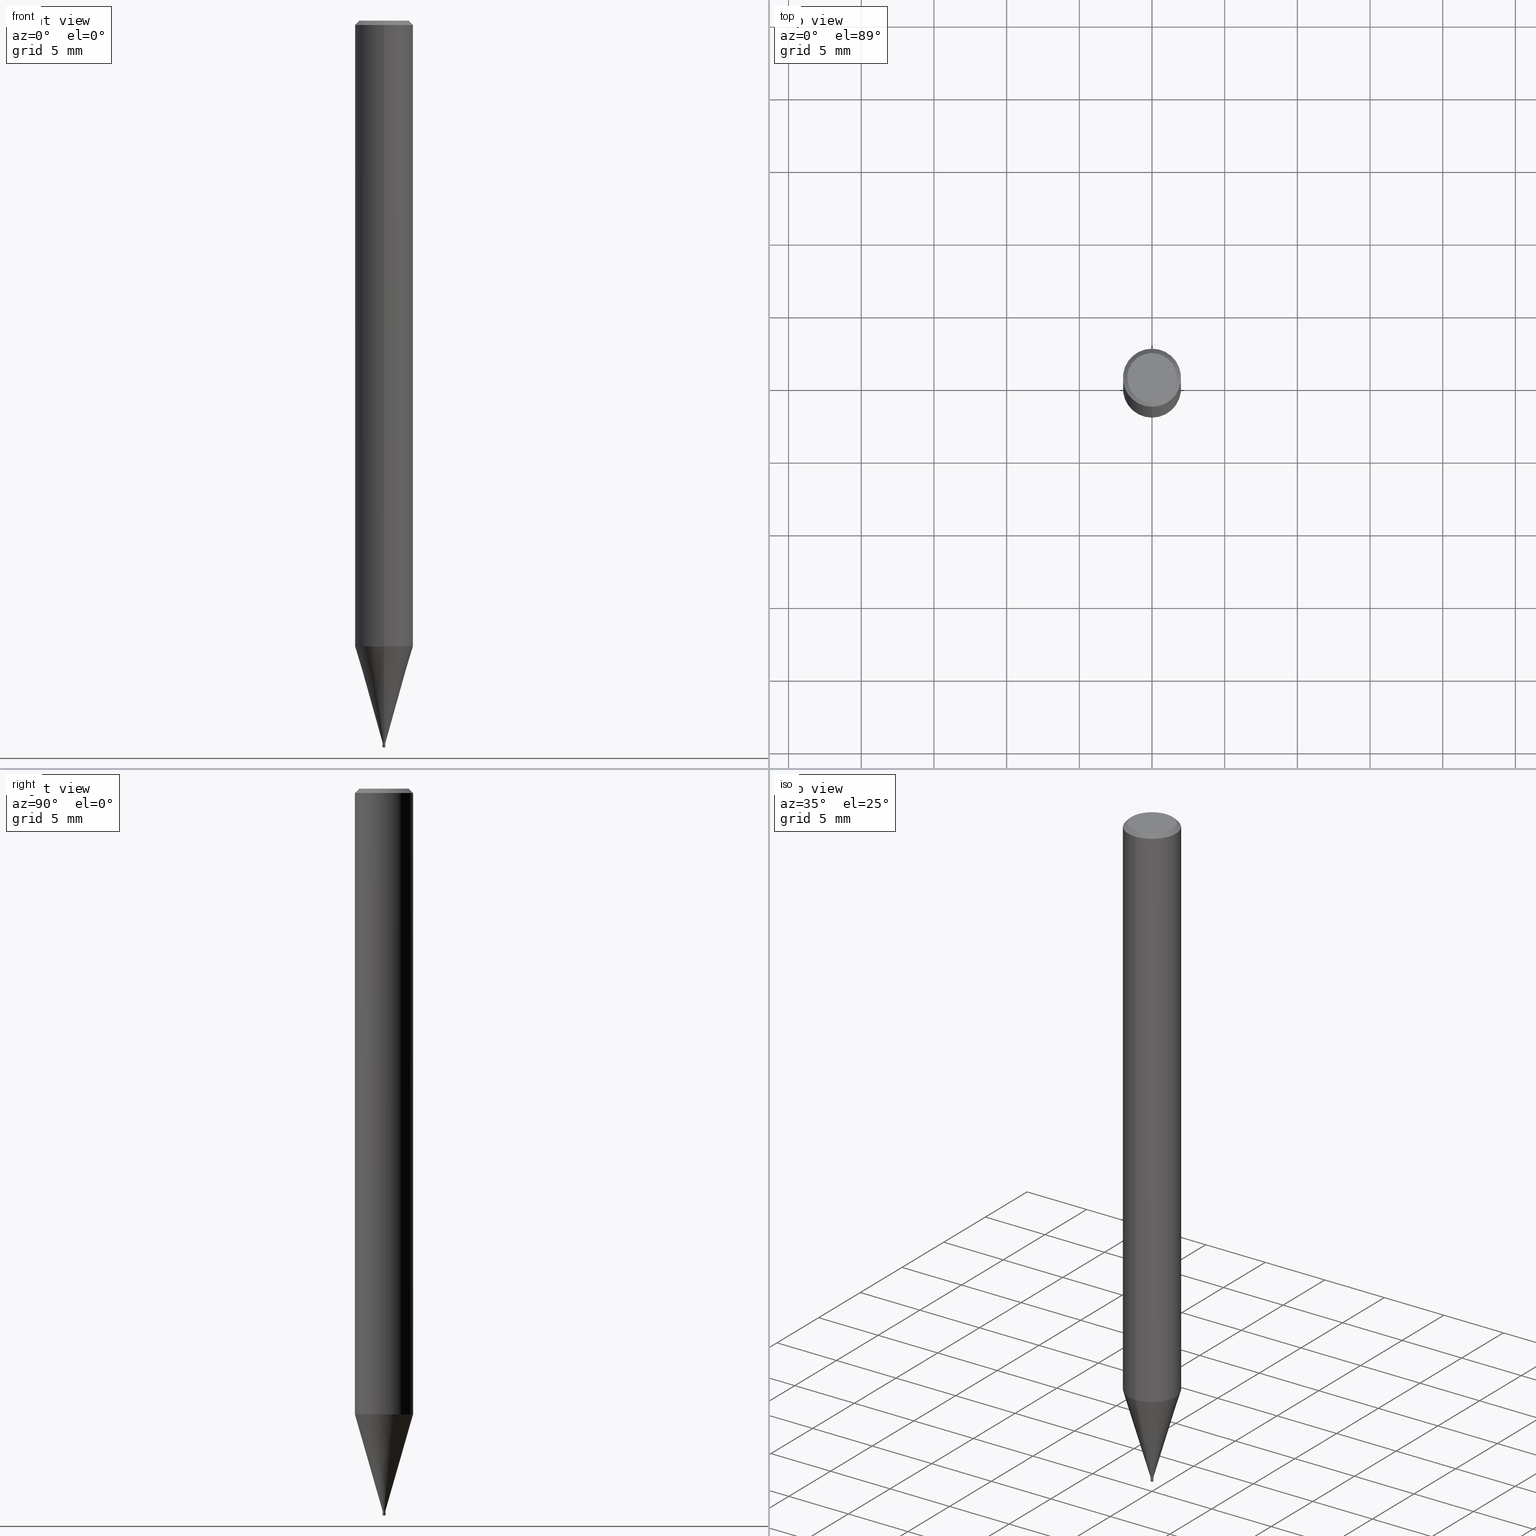
[diagram: canonical four-view strip — front | top / right | iso, engineering-drawing reading convention]
A machine part, canonical four-view strip (front | top / right | iso — engineering-drawing reading convention). The complete STEP part file that produces these views, byte-faithful:
ISO-10303-21;
HEADER;
FILE_DESCRIPTION(('no description'),'unknown implementation level');
FILE_NAME('HLRS4002-005-003-Huellk.stp','  ',('CIMSOURCE GmbH'),('CADClick - KiM GmbH - www.kimweb.de'),'unknown preprocess','ACIS','unknown authorization');
FILE_SCHEMA(('automotive_design'));
ENDSEC;
DATA;
#1=MECHANICAL_DESIGN_GEOMETRIC_PRESENTATION_REPRESENTATION(' ',(#14,#15,#16,#17,#18,#19,#20,#21,#22,#23,#24,#25,#26,#27,#28,#29,#30,#31,#32,#33,#34,#35,#36,#37,#38,#39,#40,#41,#42,#43,#44,#45,#46,#47,#48,#49,#50,#51,#52,#53,#54,#55,#56,#57,#58,#59,#60,#61,#62,#63,#64,#65,#66,#67,#68,#69,#70,#71,#72,#73,#74,#75,#76,#77,#78,#79,#80,#81,#82,#83,#84,#85,#86,#87,#88,#89,#90,#91,#92,#93,#94,#95,#96,#97,#98,#99,#100,#101,#102,#103,#104,#105,#106,#107,#108,#109,#110,#111,#112,#113,#114,#115,#116,#117,#118,#119,#120,#121),#10);
#2=PRODUCT_DEFINITION_CONTEXT('',#122,'design');
#3=APPLICATION_PROTOCOL_DEFINITION('INTERNATIONAL STANDARD','automotive_design',1994,#122);
#4=PRODUCT_CATEGORY_RELATIONSHIP('NONE','NONE',#123,#124);
#5=SHAPE_DEFINITION_REPRESENTATION(#125,#126);
#6=PRODUCT_DEFINITION_CONTEXT('',#127,'design');
#7=APPLICATION_PROTOCOL_DEFINITION('INTERNATIONAL STANDARD','automotive_design',1994,#127);
#8=PRODUCT_CATEGORY_RELATIONSHIP('NONE','NONE',#128,#129);
#9=SHAPE_DEFINITION_REPRESENTATION(#130,#131);
#10= (GEOMETRIC_REPRESENTATION_CONTEXT(3)GLOBAL_UNCERTAINTY_ASSIGNED_CONTEXT((#134))GLOBAL_UNIT_ASSIGNED_CONTEXT((#136,#137,#138))REPRESENTATION_CONTEXT('NONE','WORKSPACE'));
#14=STYLED_ITEM('',(#140),#141);
#15=STYLED_ITEM('',(#142),#143);
#16=STYLED_ITEM('',(#144),#145);
#17=STYLED_ITEM('',(#146),#147);
#18=STYLED_ITEM('',(#148),#149);
#19=STYLED_ITEM('',(#150),#151);
#20=STYLED_ITEM('',(#152),#153);
#21=STYLED_ITEM('',(#154),#155);
#22=STYLED_ITEM('',(#156),#157);
#23=STYLED_ITEM('',(#158),#159);
#24=STYLED_ITEM('',(#160),#161);
#25=STYLED_ITEM('',(#162),#163);
#26=STYLED_ITEM('',(#164),#165);
#27=STYLED_ITEM('',(#166),#167);
#28=STYLED_ITEM('',(#168),#169);
#29=STYLED_ITEM('',(#170),#171);
#30=STYLED_ITEM('',(#172),#173);
#31=STYLED_ITEM('',(#174),#175);
#32=STYLED_ITEM('',(#176),#177);
#33=STYLED_ITEM('',(#178),#179);
#34=STYLED_ITEM('',(#180),#181);
#35=STYLED_ITEM('',(#182),#183);
#36=STYLED_ITEM('',(#184),#185);
#37=STYLED_ITEM('',(#186),#187);
#38=STYLED_ITEM('',(#188),#189);
#39=STYLED_ITEM('',(#190),#191);
#40=STYLED_ITEM('',(#192),#193);
#41=STYLED_ITEM('',(#194),#195);
#42=STYLED_ITEM('',(#196),#197);
#43=STYLED_ITEM('',(#198),#199);
#44=STYLED_ITEM('',(#200),#201);
#45=STYLED_ITEM('',(#202),#203);
#46=STYLED_ITEM('',(#204),#205);
#47=STYLED_ITEM('',(#206),#207);
#48=STYLED_ITEM('',(#208),#209);
#49=STYLED_ITEM('',(#210),#211);
#50=STYLED_ITEM('',(#212),#213);
#51=STYLED_ITEM('',(#214),#215);
#52=STYLED_ITEM('',(#216),#217);
#53=STYLED_ITEM('',(#218),#219);
#54=STYLED_ITEM('',(#220),#221);
#55=STYLED_ITEM('',(#222),#223);
#56=STYLED_ITEM('',(#224),#225);
#57=STYLED_ITEM('',(#226),#227);
#58=STYLED_ITEM('',(#228),#229);
#59=STYLED_ITEM('',(#230),#231);
#60=STYLED_ITEM('',(#232),#233);
#61=STYLED_ITEM('',(#234),#235);
#62=STYLED_ITEM('',(#236),#237);
#63=STYLED_ITEM('',(#238),#239);
#64=STYLED_ITEM('',(#240),#241);
#65=STYLED_ITEM('',(#242),#243);
#66=STYLED_ITEM('',(#244),#245);
#67=STYLED_ITEM('',(#246),#247);
#68=STYLED_ITEM('',(#248),#249);
#69=STYLED_ITEM('',(#250),#251);
#70=STYLED_ITEM('',(#252),#253);
#71=STYLED_ITEM('',(#254),#255);
#72=STYLED_ITEM('',(#256),#257);
#73=STYLED_ITEM('',(#258),#259);
#74=STYLED_ITEM('',(#260),#261);
#75=STYLED_ITEM('',(#262),#263);
#76=STYLED_ITEM('',(#264),#265);
#77=STYLED_ITEM('',(#266),#267);
#78=STYLED_ITEM('',(#268),#269);
#79=STYLED_ITEM('',(#270),#271);
#80=STYLED_ITEM('',(#272),#273);
#81=STYLED_ITEM('',(#274),#275);
#82=STYLED_ITEM('',(#276),#277);
#83=STYLED_ITEM('',(#278),#279);
#84=STYLED_ITEM('',(#280),#281);
#85=STYLED_ITEM('',(#282),#283);
#86=STYLED_ITEM('',(#284),#285);
#87=STYLED_ITEM('',(#286),#287);
#88=STYLED_ITEM('',(#288),#289);
#89=STYLED_ITEM('',(#290),#291);
#90=STYLED_ITEM('',(#292),#293);
#91=STYLED_ITEM('',(#294),#295);
#92=STYLED_ITEM('',(#296),#297);
#93=STYLED_ITEM('',(#298),#299);
#94=STYLED_ITEM('',(#300),#301);
#95=STYLED_ITEM('',(#302),#303);
#96=STYLED_ITEM('',(#304),#305);
#97=STYLED_ITEM('',(#306),#307);
#98=STYLED_ITEM('',(#308),#309);
#99=STYLED_ITEM('',(#310),#311);
#100=STYLED_ITEM('',(#312),#313);
#101=STYLED_ITEM('',(#314),#315);
#102=STYLED_ITEM('',(#316),#317);
#103=STYLED_ITEM('',(#318),#319);
#104=STYLED_ITEM('',(#320),#321);
#105=STYLED_ITEM('',(#322),#323);
#106=STYLED_ITEM('',(#324),#325);
#107=STYLED_ITEM('',(#326),#327);
#108=STYLED_ITEM('',(#328),#329);
#109=STYLED_ITEM('',(#330),#331);
#110=STYLED_ITEM('',(#332),#333);
#111=STYLED_ITEM('',(#334),#335);
#112=STYLED_ITEM('',(#336),#337);
#113=STYLED_ITEM('',(#338),#339);
#114=STYLED_ITEM('',(#340),#341);
#115=STYLED_ITEM('',(#342),#343);
#116=STYLED_ITEM('',(#344),#345);
#117=STYLED_ITEM('',(#346),#347);
#118=STYLED_ITEM('',(#348),#349);
#119=STYLED_ITEM('',(#350),#351);
#120=STYLED_ITEM('',(#352),#353);
#121=STYLED_ITEM('',(#354),#355);
#122=APPLICATION_CONTEXT(' ');
#123=PRODUCT_CATEGORY('part','NONE');
#124=PRODUCT_RELATED_PRODUCT_CATEGORY('detail',' ',(#356));
#125=PRODUCT_DEFINITION_SHAPE('NONE','NONE',#357);
#126=ADVANCED_BREP_SHAPE_REPRESENTATION('1',(#235,#358),#10);
#127=APPLICATION_CONTEXT(' ');
#128=PRODUCT_CATEGORY('part','NONE');
#129=PRODUCT_RELATED_PRODUCT_CATEGORY('detail',' ',(#359));
#130=PRODUCT_DEFINITION_SHAPE('NONE','NONE',#360);
#131=ADVANCED_BREP_SHAPE_REPRESENTATION('2',(#197,#361),#10);
#134=UNCERTAINTY_MEASURE_WITH_UNIT(LENGTH_MEASURE(1.0E-006),#136,'','');
#136= (CONVERSION_BASED_UNIT('MILLIMETRE',#364)LENGTH_UNIT()NAMED_UNIT(#367));
#137= (NAMED_UNIT(#369)PLANE_ANGLE_UNIT()SI_UNIT($,.RADIAN.));
#138= (NAMED_UNIT(#369)SOLID_ANGLE_UNIT()SI_UNIT($,.STERADIAN.));
#140=PRESENTATION_STYLE_ASSIGNMENT((#375));
#141=VERTEX_POINT('',#376);
#142=PRESENTATION_STYLE_ASSIGNMENT((#377));
#143=EDGE_CURVE('',#141,#167,#378,.T.);
#144=PRESENTATION_STYLE_ASSIGNMENT((#379));
#145=EDGE_CURVE('',#309,#269,#380,.T.);
#146=PRESENTATION_STYLE_ASSIGNMENT((#381));
#147=ADVANCED_FACE('',(#382),#383,.T.);
#148=PRESENTATION_STYLE_ASSIGNMENT((#384));
#149=EDGE_CURVE('',#281,#203,#385,.T.);
#150=PRESENTATION_STYLE_ASSIGNMENT((#386));
#151=VERTEX_POINT('',#387);
#152=PRESENTATION_STYLE_ASSIGNMENT((#388));
#153=EDGE_CURVE('',#309,#157,#389,.T.);
#154=PRESENTATION_STYLE_ASSIGNMENT((#390));
#155=EDGE_CURVE('',#205,#223,#391,.T.);
#156=PRESENTATION_STYLE_ASSIGNMENT((#392));
#157=VERTEX_POINT('',#393);
#158=PRESENTATION_STYLE_ASSIGNMENT((#394));
#159=VERTEX_POINT('',#395);
#160=PRESENTATION_STYLE_ASSIGNMENT((#396));
#161=EDGE_CURVE('',#285,#265,#397,.T.);
#162=PRESENTATION_STYLE_ASSIGNMENT((#398));
#163=VERTEX_POINT('',#399);
#164=PRESENTATION_STYLE_ASSIGNMENT((#400));
#165=EDGE_CURVE('',#163,#347,#401,.T.);
#166=PRESENTATION_STYLE_ASSIGNMENT((#402));
#167=VERTEX_POINT('',#403);
#168=PRESENTATION_STYLE_ASSIGNMENT((#404));
#169=EDGE_CURVE('',#223,#205,#405,.T.);
#170=PRESENTATION_STYLE_ASSIGNMENT((#406));
#171=EDGE_CURVE('',#159,#323,#407,.T.);
#172=PRESENTATION_STYLE_ASSIGNMENT((#408));
#173=EDGE_CURVE('',#293,#159,#409,.T.);
#174=PRESENTATION_STYLE_ASSIGNMENT((#410));
#175=ADVANCED_FACE('',(#411),#412,.T.);
#176=PRESENTATION_STYLE_ASSIGNMENT((#413));
#177=ADVANCED_FACE('',(#414),#415,.T.);
#178=PRESENTATION_STYLE_ASSIGNMENT((#416));
#179=ADVANCED_FACE('',(#417,#418),#419,.T.);
#180=PRESENTATION_STYLE_ASSIGNMENT((#420));
#181=EDGE_CURVE('',#323,#151,#421,.T.);
#182=PRESENTATION_STYLE_ASSIGNMENT((#422));
#183=ADVANCED_FACE('',(#423),#424,.T.);
#184=PRESENTATION_STYLE_ASSIGNMENT((#425));
#185=EDGE_CURVE('',#231,#239,#426,.T.);
#186=PRESENTATION_STYLE_ASSIGNMENT((#427));
#187=EDGE_CURVE('',#269,#309,#428,.T.);
#188=PRESENTATION_STYLE_ASSIGNMENT((#429));
#189=EDGE_CURVE('',#323,#349,#430,.T.);
#190=PRESENTATION_STYLE_ASSIGNMENT((#431));
#191=EDGE_CURVE('',#281,#141,#432,.T.);
#192=PRESENTATION_STYLE_ASSIGNMENT((#433));
#193=ADVANCED_FACE('',(#434),#435,.T.);
#194=PRESENTATION_STYLE_ASSIGNMENT((#436));
#195=ADVANCED_FACE('',(#437),#438,.F.);
#196=PRESENTATION_STYLE_ASSIGNMENT((#439));
#197=MANIFOLD_SOLID_BREP('2',#440);
#198=PRESENTATION_STYLE_ASSIGNMENT((#441));
#199=EDGE_CURVE('',#219,#285,#442,.T.);
#200=PRESENTATION_STYLE_ASSIGNMENT((#443));
#201=ADVANCED_FACE('',(#444,#445),#446,.T.);
#202=PRESENTATION_STYLE_ASSIGNMENT((#447));
#203=VERTEX_POINT('',#448);
#204=PRESENTATION_STYLE_ASSIGNMENT((#449));
#205=VERTEX_POINT('',#450);
#206=PRESENTATION_STYLE_ASSIGNMENT((#451));
#207=EDGE_CURVE('',#319,#269,#452,.T.);
#208=PRESENTATION_STYLE_ASSIGNMENT((#453));
#209=EDGE_CURVE('',#227,#275,#454,.T.);
#210=PRESENTATION_STYLE_ASSIGNMENT((#455));
#211=EDGE_CURVE('',#167,#141,#456,.T.);
#212=PRESENTATION_STYLE_ASSIGNMENT((#457));
#213=ADVANCED_FACE('',(#458),#459,.T.);
#214=PRESENTATION_STYLE_ASSIGNMENT((#460));
#215=EDGE_CURVE('',#151,#323,#461,.T.);
#216=PRESENTATION_STYLE_ASSIGNMENT((#462));
#217=EDGE_CURVE('',#219,#347,#463,.T.);
#218=PRESENTATION_STYLE_ASSIGNMENT((#464));
#219=VERTEX_POINT('',#465);
#220=PRESENTATION_STYLE_ASSIGNMENT((#466));
#221=EDGE_CURVE('',#263,#219,#467,.T.);
#222=PRESENTATION_STYLE_ASSIGNMENT((#468));
#223=VERTEX_POINT('',#469);
#224=PRESENTATION_STYLE_ASSIGNMENT((#470));
#225=ADVANCED_FACE('',(#471),#472,.T.);
#226=PRESENTATION_STYLE_ASSIGNMENT((#473));
#227=VERTEX_POINT('',#474);
#228=PRESENTATION_STYLE_ASSIGNMENT((#475));
#229=EDGE_CURVE('',#285,#219,#476,.T.);
#230=PRESENTATION_STYLE_ASSIGNMENT((#477));
#231=VERTEX_POINT('',#478);
#232=PRESENTATION_STYLE_ASSIGNMENT((#479));
#233=ADVANCED_FACE('',(#480),#481,.T.);
#234=PRESENTATION_STYLE_ASSIGNMENT((#482));
#235=MANIFOLD_SOLID_BREP('1',#483);
#236=PRESENTATION_STYLE_ASSIGNMENT((#484));
#237=EDGE_CURVE('',#239,#231,#485,.T.);
#238=PRESENTATION_STYLE_ASSIGNMENT((#486));
#239=VERTEX_POINT('',#487);
#240=PRESENTATION_STYLE_ASSIGNMENT((#488));
#241=EDGE_CURVE('',#265,#263,#489,.T.);
#242=PRESENTATION_STYLE_ASSIGNMENT((#490));
#243=ADVANCED_FACE('',(#491),#492,.T.);
#244=PRESENTATION_STYLE_ASSIGNMENT((#493));
#245=EDGE_CURVE('',#231,#317,#494,.T.);
#246=PRESENTATION_STYLE_ASSIGNMENT((#495));
#247=EDGE_CURVE('',#319,#157,#496,.T.);
#248=PRESENTATION_STYLE_ASSIGNMENT((#497));
#249=ADVANCED_FACE('',(#498),#499,.T.);
#250=PRESENTATION_STYLE_ASSIGNMENT((#500));
#251=EDGE_CURVE('',#227,#203,#501,.T.);
#252=PRESENTATION_STYLE_ASSIGNMENT((#502));
#253=ADVANCED_FACE('',(#503),#504,.T.);
#254=PRESENTATION_STYLE_ASSIGNMENT((#505));
#255=EDGE_CURVE('',#313,#151,#506,.T.);
#256=PRESENTATION_STYLE_ASSIGNMENT((#507));
#257=EDGE_CURVE('',#163,#285,#508,.T.);
#258=PRESENTATION_STYLE_ASSIGNMENT((#509));
#259=EDGE_CURVE('',#205,#319,#510,.T.);
#260=PRESENTATION_STYLE_ASSIGNMENT((#511));
#261=EDGE_CURVE('',#343,#239,#512,.T.);
#262=PRESENTATION_STYLE_ASSIGNMENT((#513));
#263=VERTEX_POINT('',#514);
#264=PRESENTATION_STYLE_ASSIGNMENT((#515));
#265=VERTEX_POINT('',#516);
#266=PRESENTATION_STYLE_ASSIGNMENT((#517));
#267=EDGE_CURVE('',#349,#313,#518,.T.);
#268=PRESENTATION_STYLE_ASSIGNMENT((#519));
#269=VERTEX_POINT('',#520);
#270=PRESENTATION_STYLE_ASSIGNMENT((#521));
#271=EDGE_CURVE('',#167,#203,#522,.T.);
#272=PRESENTATION_STYLE_ASSIGNMENT((#523));
#273=EDGE_CURVE('',#203,#281,#524,.T.);
#274=PRESENTATION_STYLE_ASSIGNMENT((#525));
#275=VERTEX_POINT('',#526);
#276=PRESENTATION_STYLE_ASSIGNMENT((#527));
#277=EDGE_CURVE('',#347,#163,#528,.T.);
#278=PRESENTATION_STYLE_ASSIGNMENT((#529));
#279=ADVANCED_FACE('',(#530,#531),#532,.T.);
#280=PRESENTATION_STYLE_ASSIGNMENT((#533));
#281=VERTEX_POINT('',#534);
#282=PRESENTATION_STYLE_ASSIGNMENT((#535));
#283=ADVANCED_FACE('',(#536),#537,.T.);
#284=PRESENTATION_STYLE_ASSIGNMENT((#538));
#285=VERTEX_POINT('',#539);
#286=PRESENTATION_STYLE_ASSIGNMENT((#540));
#287=VERTEX_POINT('',#541);
#288=PRESENTATION_STYLE_ASSIGNMENT((#542));
#289=ADVANCED_FACE('',(#543),#544,.T.);
#290=PRESENTATION_STYLE_ASSIGNMENT((#545));
#291=EDGE_CURVE('',#317,#351,#546,.T.);
#292=PRESENTATION_STYLE_ASSIGNMENT((#547));
#293=VERTEX_POINT('',#548);
#294=PRESENTATION_STYLE_ASSIGNMENT((#549));
#295=ADVANCED_FACE('',(#550),#551,.F.);
#296=PRESENTATION_STYLE_ASSIGNMENT((#552));
#297=ADVANCED_FACE('',(#553),#554,.T.);
#298=PRESENTATION_STYLE_ASSIGNMENT((#555));
#299=ADVANCED_FACE('',(#556),#557,.T.);
#300=PRESENTATION_STYLE_ASSIGNMENT((#558));
#301=EDGE_CURVE('',#287,#351,#559,.T.);
#302=PRESENTATION_STYLE_ASSIGNMENT((#560));
#303=EDGE_CURVE('',#157,#319,#561,.T.);
#304=PRESENTATION_STYLE_ASSIGNMENT((#562));
#305=EDGE_CURVE('',#275,#227,#563,.T.);
#306=PRESENTATION_STYLE_ASSIGNMENT((#564));
#307=ADVANCED_FACE('',(#565),#566,.T.);
#308=PRESENTATION_STYLE_ASSIGNMENT((#567));
#309=VERTEX_POINT('',#568);
#310=PRESENTATION_STYLE_ASSIGNMENT((#569));
#311=EDGE_CURVE('',#159,#293,#570,.T.);
#312=PRESENTATION_STYLE_ASSIGNMENT((#571));
#313=VERTEX_POINT('',#572);
#314=PRESENTATION_STYLE_ASSIGNMENT((#573));
#315=ADVANCED_FACE('',(#574),#575,.T.);
#316=PRESENTATION_STYLE_ASSIGNMENT((#576));
#317=VERTEX_POINT('',#577);
#318=PRESENTATION_STYLE_ASSIGNMENT((#578));
#319=VERTEX_POINT('',#579);
#320=PRESENTATION_STYLE_ASSIGNMENT((#580));
#321=EDGE_CURVE('',#313,#349,#581,.T.);
#322=PRESENTATION_STYLE_ASSIGNMENT((#582));
#323=VERTEX_POINT('',#583);
#324=PRESENTATION_STYLE_ASSIGNMENT((#584));
#325=EDGE_CURVE('',#263,#265,#585,.T.);
#326=PRESENTATION_STYLE_ASSIGNMENT((#586));
#327=ADVANCED_FACE('',(#587),#588,.F.);
#328=PRESENTATION_STYLE_ASSIGNMENT((#589));
#329=EDGE_CURVE('',#351,#287,#590,.T.);
#330=PRESENTATION_STYLE_ASSIGNMENT((#591));
#331=EDGE_CURVE('',#151,#293,#592,.T.);
#332=PRESENTATION_STYLE_ASSIGNMENT((#593));
#333=EDGE_CURVE('',#157,#223,#594,.T.);
#334=PRESENTATION_STYLE_ASSIGNMENT((#595));
#335=EDGE_CURVE('',#281,#275,#596,.T.);
#336=PRESENTATION_STYLE_ASSIGNMENT((#597));
#337=EDGE_CURVE('',#317,#343,#598,.T.);
#338=PRESENTATION_STYLE_ASSIGNMENT((#599));
#339=ADVANCED_FACE('',(#600),#601,.F.);
#340=PRESENTATION_STYLE_ASSIGNMENT((#602));
#341=ADVANCED_FACE('',(#603,#604),#605,.T.);
#342=PRESENTATION_STYLE_ASSIGNMENT((#606));
#343=VERTEX_POINT('',#607);
#344=PRESENTATION_STYLE_ASSIGNMENT((#608));
#345=ADVANCED_FACE('',(#609),#610,.T.);
#346=PRESENTATION_STYLE_ASSIGNMENT((#611));
#347=VERTEX_POINT('',#612);
#348=PRESENTATION_STYLE_ASSIGNMENT((#613));
#349=VERTEX_POINT('',#614);
#350=PRESENTATION_STYLE_ASSIGNMENT((#615));
#351=VERTEX_POINT('',#616);
#352=PRESENTATION_STYLE_ASSIGNMENT((#617));
#353=EDGE_CURVE('',#287,#343,#618,.T.);
#354=PRESENTATION_STYLE_ASSIGNMENT((#619));
#355=EDGE_CURVE('',#343,#317,#620,.T.);
#356=PRODUCT('1','1','PART-1-DESC',(#621));
#357=PRODUCT_DEFINITION('NONE','NONE',#622,#2);
#358=AXIS2_PLACEMENT_3D('',#623,#624,#625);
#359=PRODUCT('2','2','PART-2-DESC',(#626));
#360=PRODUCT_DEFINITION('NONE','NONE',#627,#6);
#361=AXIS2_PLACEMENT_3D('',#628,#629,#630);
#364=LENGTH_MEASURE_WITH_UNIT(LENGTH_MEASURE(1.0),#631);
#367=DIMENSIONAL_EXPONENTS(1.0,0.0,0.0,0.0,0.0,0.0,0.0);
#369=DIMENSIONAL_EXPONENTS(0.0,0.0,0.0,0.0,0.0,0.0,0.0);
#375=POINT_STYLE(' ',#632,POSITIVE_LENGTH_MEASURE(1.0E-006),#633);
#376=CARTESIAN_POINT('',(6.12303176911189E-018,-0.05,-49.99));
#377=CURVE_STYLE('',#634,POSITIVE_LENGTH_MEASURE(1.0E-006),#635);
#378=CIRCLE('',#636,0.05);
#379=CURVE_STYLE('',#637,POSITIVE_LENGTH_MEASURE(1.0E-006),#638);
#380=CIRCLE('',#639,0.045);
#381=SURFACE_STYLE_USAGE(.BOTH.,#640);
#382=FACE_OUTER_BOUND('',#641,.T.);
#383=TOROIDAL_SURFACE('',#642,0.05,0.0500000000000001);
#384=CURVE_STYLE('',#643,POSITIVE_LENGTH_MEASURE(1.0E-006),#644);
#385=CIRCLE('',#645,0.1);
#386=POINT_STYLE(' ',#646,POSITIVE_LENGTH_MEASURE(1.0E-006),#647);
#387=CARTESIAN_POINT('',(0.0,0.045,-49.88));
#388=CURVE_STYLE('',#648,POSITIVE_LENGTH_MEASURE(1.0E-006),#649);
#389=LINE('',#650,#651);
#390=CURVE_STYLE('',#652,POSITIVE_LENGTH_MEASURE(1.0E-006),#653);
#391=CIRCLE('',#654,0.0949);
#392=POINT_STYLE(' ',#655,POSITIVE_LENGTH_MEASURE(1.0E-006),#656);
#393=CARTESIAN_POINT('',(5.5107285922007E-018,-0.045,-49.88));
#394=POINT_STYLE(' ',#657,POSITIVE_LENGTH_MEASURE(1.0E-006),#658);
#395=CARTESIAN_POINT('',(5.5107285922007E-018,-0.045,-49.96));
#396=CURVE_STYLE('',#659,POSITIVE_LENGTH_MEASURE(1.0E-006),#660);
#397=LINE('',#661,#662);
#398=POINT_STYLE(' ',#663,POSITIVE_LENGTH_MEASURE(1.0E-006),#664);
#399=CARTESIAN_POINT('',(1.13214857410879E-017,-0.09245,-49.87));
#400=CURVE_STYLE('',#665,POSITIVE_LENGTH_MEASURE(1.0E-006),#666);
#401=CIRCLE('',#667,0.09245);
#402=POINT_STYLE(' ',#668,POSITIVE_LENGTH_MEASURE(1.0E-006),#669);
#403=CARTESIAN_POINT('',(0.0,0.05,-49.99));
#404=CURVE_STYLE('',#670,POSITIVE_LENGTH_MEASURE(1.0E-006),#671);
#405=CIRCLE('',#672,0.0949);
#406=CURVE_STYLE('',#673,POSITIVE_LENGTH_MEASURE(1.0E-006),#674);
#407=LINE('',#675,#676);
#408=CURVE_STYLE('',#677,POSITIVE_LENGTH_MEASURE(1.0E-006),#678);
#409=CIRCLE('',#679,0.045);
#410=SURFACE_STYLE_USAGE(.BOTH.,#680);
#411=FACE_OUTER_BOUND('',#681,.T.);
#412=CYLINDRICAL_SURFACE('',#682,2.0);
#413=SURFACE_STYLE_USAGE(.BOTH.,#683);
#414=FACE_OUTER_BOUND('',#684,.T.);
#415=CYLINDRICAL_SURFACE('',#685,0.045);
#416=SURFACE_STYLE_USAGE(.BOTH.,#686);
#417=FACE_OUTER_BOUND('',#687,.T.);
#418=FACE_BOUND('',#688,.T.);
#419=PLANE('',#689);
#420=CURVE_STYLE('',#690,POSITIVE_LENGTH_MEASURE(1.0E-006),#691);
#421=CIRCLE('',#692,0.045);
#422=SURFACE_STYLE_USAGE(.BOTH.,#693);
#423=FACE_OUTER_BOUND('',#694,.T.);
#424=CONICAL_SURFACE('',#695,0.069975,1.37320827416588);
#425=CURVE_STYLE('',#696,POSITIVE_LENGTH_MEASURE(1.0E-006),#697);
#426=CIRCLE('',#698,2.0);
#427=CURVE_STYLE('',#699,POSITIVE_LENGTH_MEASURE(1.0E-006),#700);
#428=CIRCLE('',#701,0.045);
#429=CURVE_STYLE('',#702,POSITIVE_LENGTH_MEASURE(1.0E-006),#703);
#430=LINE('',#704,#705);
#431=CURVE_STYLE('',#706,POSITIVE_LENGTH_MEASURE(1.0E-006),#707);
#432=CIRCLE('',#708,0.0500000000000001);
#433=SURFACE_STYLE_USAGE(.BOTH.,#709);
#434=FACE_OUTER_BOUND('',#710,.T.);
#435=CONICAL_SURFACE('',#711,1.0462,0.279262361421134);
#436=SURFACE_STYLE_USAGE(.BOTH.,#712);
#437=FACE_OUTER_BOUND('',#713,.T.);
#438=CONICAL_SURFACE('',#714,0.06995,1.37301541050937);
#439=SURFACE_STYLE_USAGE(.BOTH.,#715);
#440=CLOSED_SHELL('',(#295,#147,#243,#339,#195,#201,#297,#299,#341,#327));
#441=CURVE_STYLE('',#716,POSITIVE_LENGTH_MEASURE(1.0E-006),#717);
#442=CIRCLE('',#718,0.09245);
#443=SURFACE_STYLE_USAGE(.BOTH.,#719);
#444=FACE_OUTER_BOUND('',#720,.T.);
#445=FACE_BOUND('',#721,.T.);
#446=PLANE('',#722);
#447=POINT_STYLE(' ',#723,POSITIVE_LENGTH_MEASURE(1.0E-006),#724);
#448=CARTESIAN_POINT('',(0.0,0.1,-49.94));
#449=POINT_STYLE(' ',#725,POSITIVE_LENGTH_MEASURE(1.0E-006),#726);
#450=CARTESIAN_POINT('',(0.0,0.0949,-49.87));
#451=CURVE_STYLE('',#727,POSITIVE_LENGTH_MEASURE(1.0E-006),#728);
#452=LINE('',#729,#730);
#453=CURVE_STYLE('',#731,POSITIVE_LENGTH_MEASURE(1.0E-006),#732);
#454=CIRCLE('',#733,0.0999);
#455=CURVE_STYLE('',#734,POSITIVE_LENGTH_MEASURE(1.0E-006),#735);
#456=CIRCLE('',#736,0.05);
#457=SURFACE_STYLE_USAGE(.BOTH.,#737);
#458=FACE_OUTER_BOUND('',#738,.T.);
#459=PLANE('',#739);
#460=CURVE_STYLE('',#740,POSITIVE_LENGTH_MEASURE(1.0E-006),#741);
#461=CIRCLE('',#742,0.045);
#462=CURVE_STYLE('',#743,POSITIVE_LENGTH_MEASURE(1.0E-006),#744);
#463=LINE('',#745,#746);
#464=POINT_STYLE(' ',#747,POSITIVE_LENGTH_MEASURE(1.0E-006),#748);
#465=CARTESIAN_POINT('',(0.0,0.09245,-49.69));
#466=CURVE_STYLE('',#749,POSITIVE_LENGTH_MEASURE(1.0E-006),#750);
#467=LINE('',#751,#752);
#468=POINT_STYLE(' ',#753,POSITIVE_LENGTH_MEASURE(1.0E-006),#754);
#469=CARTESIAN_POINT('',(1.16215142977744E-017,-0.0949,-49.87));
#470=SURFACE_STYLE_USAGE(.BOTH.,#755);
#471=FACE_OUTER_BOUND('',#756,.T.);
#472=PLANE('',#757);
#473=POINT_STYLE(' ',#758,POSITIVE_LENGTH_MEASURE(1.0E-006),#759);
#474=CARTESIAN_POINT('',(0.0,0.0999,-49.87));
#475=CURVE_STYLE('',#760,POSITIVE_LENGTH_MEASURE(1.0E-006),#761);
#476=CIRCLE('',#762,0.09245);
#477=POINT_STYLE(' ',#763,POSITIVE_LENGTH_MEASURE(1.0E-006),#764);
#478=CARTESIAN_POINT('',(2.44921270764475E-016,-2.0,-43.038));
#479=SURFACE_STYLE_USAGE(.BOTH.,#765);
#480=FACE_OUTER_BOUND('',#766,.T.);
#481=CYLINDRICAL_SURFACE('',#767,0.09245);
#482=SURFACE_STYLE_USAGE(.BOTH.,#768);
#483=CLOSED_SHELL('',(#177,#183,#289,#307,#175,#249,#179,#225,#345,#315,#193,#233,#279,#283,#253,#213));
#484=CURVE_STYLE('',#769,POSITIVE_LENGTH_MEASURE(1.0E-006),#770);
#485=CIRCLE('',#771,2.0);
#486=POINT_STYLE(' ',#772,POSITIVE_LENGTH_MEASURE(1.0E-006),#773);
#487=CARTESIAN_POINT('',(0.0,2.0,-43.038));
#488=CURVE_STYLE('',#774,POSITIVE_LENGTH_MEASURE(1.0E-006),#775);
#489=CIRCLE('',#776,1.99995);
#490=SURFACE_STYLE_USAGE(.BOTH.,#777);
#491=FACE_OUTER_BOUND('',#778,.T.);
#492=CONICAL_SURFACE('',#779,0.09995,0.00142857045675536);
#493=CURVE_STYLE('',#780,POSITIVE_LENGTH_MEASURE(1.0E-006),#781);
#494=LINE('',#782,#783);
#495=CURVE_STYLE('',#784,POSITIVE_LENGTH_MEASURE(1.0E-006),#785);
#496=CIRCLE('',#786,0.045);
#497=SURFACE_STYLE_USAGE(.BOTH.,#787);
#498=FACE_OUTER_BOUND('',#788,.T.);
#499=CONICAL_SURFACE('',#789,1.85,0.785398163397453);
#500=CURVE_STYLE('',#790,POSITIVE_LENGTH_MEASURE(1.0E-006),#791);
#501=LINE('',#792,#793);
#502=SURFACE_STYLE_USAGE(.BOTH.,#794);
#503=FACE_OUTER_BOUND('',#795,.T.);
#504=CYLINDRICAL_SURFACE('',#796,0.045);
#505=CURVE_STYLE('',#797,POSITIVE_LENGTH_MEASURE(1.0E-006),#798);
#506=LINE('',#799,#800);
#507=CURVE_STYLE('',#801,POSITIVE_LENGTH_MEASURE(1.0E-006),#802);
#508=LINE('',#803,#804);
#509=CURVE_STYLE('',#805,POSITIVE_LENGTH_MEASURE(1.0E-006),#806);
#510=LINE('',#807,#808);
#511=CURVE_STYLE('',#809,POSITIVE_LENGTH_MEASURE(1.0E-006),#810);
#512=LINE('',#811,#812);
#513=POINT_STYLE(' ',#813,POSITIVE_LENGTH_MEASURE(1.0E-006),#814);
#514=CARTESIAN_POINT('',(0.0,1.99995,-43.038));
#515=POINT_STYLE(' ',#815,POSITIVE_LENGTH_MEASURE(1.0E-006),#816);
#516=CARTESIAN_POINT('',(2.44915147732706E-016,-1.99995,-43.038));
#517=CURVE_STYLE('',#817,POSITIVE_LENGTH_MEASURE(1.0E-006),#818);
#518=CIRCLE('',#819,0.09495);
#519=POINT_STYLE(' ',#820,POSITIVE_LENGTH_MEASURE(1.0E-006),#821);
#520=CARTESIAN_POINT('',(0.0,0.045,-49.99));
#521=CURVE_STYLE('',#822,POSITIVE_LENGTH_MEASURE(1.0E-006),#823);
#522=CIRCLE('',#824,0.0500000000000001);
#523=CURVE_STYLE('',#825,POSITIVE_LENGTH_MEASURE(1.0E-006),#826);
#524=CIRCLE('',#827,0.1);
#525=POINT_STYLE(' ',#828,POSITIVE_LENGTH_MEASURE(1.0E-006),#829);
#526=CARTESIAN_POINT('',(1.22338174746855E-017,-0.0999,-49.87));
#527=CURVE_STYLE('',#830,POSITIVE_LENGTH_MEASURE(1.0E-006),#831);
#528=CIRCLE('',#832,0.09245);
#529=SURFACE_STYLE_USAGE(.BOTH.,#833);
#530=FACE_OUTER_BOUND('',#834,.T.);
#531=FACE_BOUND('',#835,.T.);
#532=PLANE('',#836);
#533=POINT_STYLE(' ',#837,POSITIVE_LENGTH_MEASURE(1.0E-006),#838);
#534=CARTESIAN_POINT('',(1.22460635382238E-017,-0.1,-49.94));
#535=SURFACE_STYLE_USAGE(.BOTH.,#839);
#536=FACE_OUTER_BOUND('',#840,.T.);
#537=CONICAL_SURFACE('',#841,0.069975,1.37320827416588);
#538=POINT_STYLE(' ',#842,POSITIVE_LENGTH_MEASURE(1.0E-006),#843);
#539=CARTESIAN_POINT('',(1.13214857410879E-017,-0.09245,-49.69));
#540=POINT_STYLE(' ',#844,POSITIVE_LENGTH_MEASURE(1.0E-006),#845);
#541=CARTESIAN_POINT('',(0.0,1.7,0.00999999999999801));
#542=SURFACE_STYLE_USAGE(.BOTH.,#846);
#543=FACE_OUTER_BOUND('',#847,.T.);
#544=CYLINDRICAL_SURFACE('',#848,0.09245);
#545=CURVE_STYLE('',#849,POSITIVE_LENGTH_MEASURE(1.0E-006),#850);
#546=LINE('',#851,#852);
#547=POINT_STYLE(' ',#853,POSITIVE_LENGTH_MEASURE(1.0E-006),#854);
#548=CARTESIAN_POINT('',(0.0,0.045,-49.96));
#549=SURFACE_STYLE_USAGE(.BOTH.,#855);
#550=FACE_OUTER_BOUND('',#856,.T.);
#551=CYLINDRICAL_SURFACE('',#857,0.045);
#552=SURFACE_STYLE_USAGE(.BOTH.,#858);
#553=FACE_OUTER_BOUND('',#859,.T.);
#554=CONICAL_SURFACE('',#860,0.09995,0.00142857045675536);
#555=SURFACE_STYLE_USAGE(.BOTH.,#861);
#556=FACE_OUTER_BOUND('',#862,.T.);
#557=TOROIDAL_SURFACE('',#863,0.05,0.0500000000000001);
#558=CURVE_STYLE('',#864,POSITIVE_LENGTH_MEASURE(1.0E-006),#865);
#559=CIRCLE('',#866,1.7);
#560=CURVE_STYLE('',#867,POSITIVE_LENGTH_MEASURE(1.0E-006),#868);
#561=CIRCLE('',#869,0.045);
#562=CURVE_STYLE('',#870,POSITIVE_LENGTH_MEASURE(1.0E-006),#871);
#563=CIRCLE('',#872,0.0999);
#564=SURFACE_STYLE_USAGE(.BOTH.,#873);
#565=FACE_OUTER_BOUND('',#874,.T.);
#566=CONICAL_SURFACE('',#875,1.0462,0.279262361421134);
#567=POINT_STYLE(' ',#876,POSITIVE_LENGTH_MEASURE(1.0E-006),#877);
#568=CARTESIAN_POINT('',(5.5107285922007E-018,-0.045,-49.99));
#569=CURVE_STYLE('',#878,POSITIVE_LENGTH_MEASURE(1.0E-006),#879);
#570=CIRCLE('',#880,0.045);
#571=POINT_STYLE(' ',#881,POSITIVE_LENGTH_MEASURE(1.0E-006),#882);
#572=CARTESIAN_POINT('',(0.0,0.09495,-49.87));
#573=SURFACE_STYLE_USAGE(.BOTH.,#883);
#574=FACE_OUTER_BOUND('',#884,.T.);
#575=CYLINDRICAL_SURFACE('',#885,2.0);
#576=POINT_STYLE(' ',#886,POSITIVE_LENGTH_MEASURE(1.0E-006),#887);
#577=CARTESIAN_POINT('',(2.44921270764475E-016,-2.0,-0.289999999999999));
#578=POINT_STYLE(' ',#888,POSITIVE_LENGTH_MEASURE(1.0E-006),#889);
#579=CARTESIAN_POINT('',(0.0,0.045,-49.88));
#580=CURVE_STYLE('',#890,POSITIVE_LENGTH_MEASURE(1.0E-006),#891);
#581=CIRCLE('',#892,0.09495);
#582=POINT_STYLE(' ',#893,POSITIVE_LENGTH_MEASURE(1.0E-006),#894);
#583=CARTESIAN_POINT('',(5.5107285922007E-018,-0.045,-49.88));
#584=CURVE_STYLE('',#895,POSITIVE_LENGTH_MEASURE(1.0E-006),#896);
#585=CIRCLE('',#897,1.99995);
#586=SURFACE_STYLE_USAGE(.BOTH.,#898);
#587=FACE_OUTER_BOUND('',#899,.T.);
#588=CYLINDRICAL_SURFACE('',#900,0.045);
#589=CURVE_STYLE('',#901,POSITIVE_LENGTH_MEASURE(1.0E-006),#902);
#590=CIRCLE('',#903,1.7);
#591=CURVE_STYLE('',#904,POSITIVE_LENGTH_MEASURE(1.0E-006),#905);
#592=LINE('',#906,#907);
#593=CURVE_STYLE('',#908,POSITIVE_LENGTH_MEASURE(1.0E-006),#909);
#594=LINE('',#910,#911);
#595=CURVE_STYLE('',#912,POSITIVE_LENGTH_MEASURE(1.0E-006),#913);
#596=LINE('',#914,#915);
#597=CURVE_STYLE('',#916,POSITIVE_LENGTH_MEASURE(1.0E-006),#917);
#598=CIRCLE('',#918,2.0);
#599=SURFACE_STYLE_USAGE(.BOTH.,#919);
#600=FACE_OUTER_BOUND('',#920,.T.);
#601=CONICAL_SURFACE('',#921,0.06995,1.37301541050937);
#602=SURFACE_STYLE_USAGE(.BOTH.,#922);
#603=FACE_BOUND('',#923,.T.);
#604=FACE_OUTER_BOUND('',#924,.T.);
#605=PLANE('',#925);
#606=POINT_STYLE(' ',#926,POSITIVE_LENGTH_MEASURE(1.0E-006),#927);
#607=CARTESIAN_POINT('',(0.0,2.0,-0.289999999999999));
#608=SURFACE_STYLE_USAGE(.BOTH.,#928);
#609=FACE_OUTER_BOUND('',#929,.T.);
#610=CONICAL_SURFACE('',#930,1.85,0.785398163397453);
#611=POINT_STYLE(' ',#931,POSITIVE_LENGTH_MEASURE(1.0E-006),#932);
#612=CARTESIAN_POINT('',(0.0,0.09245,-49.87));
#613=POINT_STYLE(' ',#933,POSITIVE_LENGTH_MEASURE(1.0E-006),#934);
#614=CARTESIAN_POINT('',(1.16276373295435E-017,-0.09495,-49.87));
#615=POINT_STYLE(' ',#935,POSITIVE_LENGTH_MEASURE(1.0E-006),#936);
#616=CARTESIAN_POINT('',(2.08183080149804E-016,-1.7,0.00999999999999801));
#617=CURVE_STYLE('',#937,POSITIVE_LENGTH_MEASURE(1.0E-006),#938);
#618=LINE('',#939,#940);
#619=CURVE_STYLE('',#941,POSITIVE_LENGTH_MEASURE(1.0E-006),#942);
#620=CIRCLE('',#943,2.0);
#621=PRODUCT_CONTEXT('',#122,'mechanical');
#622=PRODUCT_DEFINITION_FORMATION_WITH_SPECIFIED_SOURCE(' ','NONE',#356,.NOT_KNOWN.);
#623=CARTESIAN_POINT('',(0.0,0.0,0.0));
#624=DIRECTION('',(0.0,0.0,1.0));
#625=DIRECTION('',(1.0,0.0,0.0));
#626=PRODUCT_CONTEXT('',#127,'mechanical');
#627=PRODUCT_DEFINITION_FORMATION_WITH_SPECIFIED_SOURCE(' ','NONE',#359,.NOT_KNOWN.);
#628=CARTESIAN_POINT('',(0.0,0.0,0.0));
#629=DIRECTION('',(0.0,0.0,1.0));
#630=DIRECTION('',(1.0,0.0,0.0));
#631= (NAMED_UNIT(#367)LENGTH_UNIT()SI_UNIT(.MILLI.,.METRE.));
#632=PRE_DEFINED_MARKER('');
#633=COLOUR_RGB('',0.800000011920929,0.800000011920929,0.800000011920929);
#634=DRAUGHTING_PRE_DEFINED_CURVE_FONT('continuous');
#635=COLOUR_RGB('',0.800000011920929,0.800000011920929,0.800000011920929);
#636=AXIS2_PLACEMENT_3D('',#945,#946,#947);
#637=DRAUGHTING_PRE_DEFINED_CURVE_FONT('continuous');
#638=COLOUR_RGB('',0.800000011920929,0.800000011920929,0.800000011920929);
#639=AXIS2_PLACEMENT_3D('',#948,#949,#950);
#640=SURFACE_SIDE_STYLE('',(#951));
#641=EDGE_LOOP('',(#952,#953,#954,#955));
#642=AXIS2_PLACEMENT_3D('',#956,#957,#958);
#643=DRAUGHTING_PRE_DEFINED_CURVE_FONT('continuous');
#644=COLOUR_RGB('',0.800000011920929,0.800000011920929,0.800000011920929);
#645=AXIS2_PLACEMENT_3D('',#959,#960,#961);
#646=PRE_DEFINED_MARKER('');
#647=COLOUR_RGB('',0.498039215803146,0.498039215803146,0.498039215803146);
#648=DRAUGHTING_PRE_DEFINED_CURVE_FONT('continuous');
#649=COLOUR_RGB('',0.800000011920929,0.800000011920929,0.800000011920929);
#650=CARTESIAN_POINT('',(5.5107285922007E-018,-0.045,-49.935));
#651=VECTOR('',#962,1.0);
#652=DRAUGHTING_PRE_DEFINED_CURVE_FONT('continuous');
#653=COLOUR_RGB('',0.800000011920929,0.800000011920929,0.800000011920929);
#654=AXIS2_PLACEMENT_3D('',#963,#964,#965);
#655=PRE_DEFINED_MARKER('');
#656=COLOUR_RGB('',0.800000011920929,0.800000011920929,0.800000011920929);
#657=PRE_DEFINED_MARKER('');
#658=COLOUR_RGB('',0.498039215803146,0.498039215803146,0.498039215803146);
#659=DRAUGHTING_PRE_DEFINED_CURVE_FONT('continuous');
#660=COLOUR_RGB('',0.498039215803146,0.498039215803146,0.498039215803146);
#661=CARTESIAN_POINT('',(1.28118316736897E-016,-1.0462,-46.364));
#662=VECTOR('',#966,1.0);
#663=PRE_DEFINED_MARKER('');
#664=COLOUR_RGB('',0.498039215803146,0.498039215803146,0.498039215803146);
#665=DRAUGHTING_PRE_DEFINED_CURVE_FONT('continuous');
#666=COLOUR_RGB('',0.498039215803146,0.498039215803146,0.498039215803146);
#667=AXIS2_PLACEMENT_3D('',#967,#968,#969);
#668=PRE_DEFINED_MARKER('');
#669=COLOUR_RGB('',0.800000011920929,0.800000011920929,0.800000011920929);
#670=DRAUGHTING_PRE_DEFINED_CURVE_FONT('continuous');
#671=COLOUR_RGB('',0.800000011920929,0.800000011920929,0.800000011920929);
#672=AXIS2_PLACEMENT_3D('',#970,#971,#972);
#673=DRAUGHTING_PRE_DEFINED_CURVE_FONT('continuous');
#674=COLOUR_RGB('',0.498039215803146,0.498039215803146,0.498039215803146);
#675=CARTESIAN_POINT('',(5.5107285922007E-018,-0.045,-49.92));
#676=VECTOR('',#973,1.0);
#677=DRAUGHTING_PRE_DEFINED_CURVE_FONT('continuous');
#678=COLOUR_RGB('',0.498039215803146,0.498039215803146,0.498039215803146);
#679=AXIS2_PLACEMENT_3D('',#974,#975,#976);
#680=SURFACE_SIDE_STYLE('',(#977));
#681=EDGE_LOOP('',(#978,#979,#980,#981));
#682=AXIS2_PLACEMENT_3D('',#982,#983,#984);
#683=SURFACE_SIDE_STYLE('',(#985));
#684=EDGE_LOOP('',(#986,#987,#988,#989));
#685=AXIS2_PLACEMENT_3D('',#990,#991,#992);
#686=SURFACE_SIDE_STYLE('',(#993));
#687=EDGE_LOOP('',(#994,#995));
#688=EDGE_LOOP('',(#996,#997));
#689=AXIS2_PLACEMENT_3D('',#998,#999,#1000);
#690=DRAUGHTING_PRE_DEFINED_CURVE_FONT('continuous');
#691=COLOUR_RGB('',0.498039215803146,0.498039215803146,0.498039215803146);
#692=AXIS2_PLACEMENT_3D('',#1001,#1002,#1003);
#693=SURFACE_SIDE_STYLE('',(#1004));
#694=EDGE_LOOP('',(#1005,#1006,#1007,#1008));
#695=AXIS2_PLACEMENT_3D('',#1009,#1010,#1011);
#696=DRAUGHTING_PRE_DEFINED_CURVE_FONT('continuous');
#697=COLOUR_RGB('',0.498039215803146,0.498039215803146,0.498039215803146);
#698=AXIS2_PLACEMENT_3D('',#1012,#1013,#1014);
#699=DRAUGHTING_PRE_DEFINED_CURVE_FONT('continuous');
#700=COLOUR_RGB('',0.800000011920929,0.800000011920929,0.800000011920929);
#701=AXIS2_PLACEMENT_3D('',#1015,#1016,#1017);
#702=DRAUGHTING_PRE_DEFINED_CURVE_FONT('continuous');
#703=COLOUR_RGB('',0.498039215803146,0.498039215803146,0.498039215803146);
#704=CARTESIAN_POINT('',(8.56918296087209E-018,-0.069975,-49.875));
#705=VECTOR('',#1018,1.0);
#706=DRAUGHTING_PRE_DEFINED_CURVE_FONT('continuous');
#707=COLOUR_RGB('',0.800000011920929,0.800000011920929,0.800000011920929);
#708=AXIS2_PLACEMENT_3D('',#1019,#1020,#1021);
#709=SURFACE_SIDE_STYLE('',(#1022));
#710=EDGE_LOOP('',(#1023,#1024,#1025,#1026));
#711=AXIS2_PLACEMENT_3D('',#1027,#1028,#1029);
#712=SURFACE_SIDE_STYLE('',(#1030));
#713=EDGE_LOOP('',(#1031,#1032,#1033,#1034));
#714=AXIS2_PLACEMENT_3D('',#1035,#1036,#1037);
#715=SURFACE_SIDE_STYLE('',(#1038));
#716=DRAUGHTING_PRE_DEFINED_CURVE_FONT('continuous');
#717=COLOUR_RGB('',0.498039215803146,0.498039215803146,0.498039215803146);
#718=AXIS2_PLACEMENT_3D('',#1039,#1040,#1041);
#719=SURFACE_SIDE_STYLE('',(#1042));
#720=EDGE_LOOP('',(#1043,#1044));
#721=EDGE_LOOP('',(#1045,#1046));
#722=AXIS2_PLACEMENT_3D('',#1047,#1048,#1049);
#723=PRE_DEFINED_MARKER('');
#724=COLOUR_RGB('',0.800000011920929,0.800000011920929,0.800000011920929);
#725=PRE_DEFINED_MARKER('');
#726=COLOUR_RGB('',0.800000011920929,0.800000011920929,0.800000011920929);
#727=DRAUGHTING_PRE_DEFINED_CURVE_FONT('continuous');
#728=COLOUR_RGB('',0.800000011920929,0.800000011920929,0.800000011920929);
#729=CARTESIAN_POINT('',(-5.5107285922007E-018,0.045,-49.935));
#730=VECTOR('',#1050,1.0);
#731=DRAUGHTING_PRE_DEFINED_CURVE_FONT('continuous');
#732=COLOUR_RGB('',0.800000011920929,0.800000011920929,0.800000011920929);
#733=AXIS2_PLACEMENT_3D('',#1051,#1052,#1053);
#734=DRAUGHTING_PRE_DEFINED_CURVE_FONT('continuous');
#735=COLOUR_RGB('',0.800000011920929,0.800000011920929,0.800000011920929);
#736=AXIS2_PLACEMENT_3D('',#1054,#1055,#1056);
#737=SURFACE_SIDE_STYLE('',(#1057));
#738=EDGE_LOOP('',(#1058,#1059));
#739=AXIS2_PLACEMENT_3D('',#1060,#1061,#1062);
#740=DRAUGHTING_PRE_DEFINED_CURVE_FONT('continuous');
#741=COLOUR_RGB('',0.498039215803146,0.498039215803146,0.498039215803146);
#742=AXIS2_PLACEMENT_3D('',#1063,#1064,#1065);
#743=DRAUGHTING_PRE_DEFINED_CURVE_FONT('continuous');
#744=COLOUR_RGB('',0.498039215803146,0.498039215803146,0.498039215803146);
#745=CARTESIAN_POINT('',(-1.13214857410879E-017,0.09245,-49.78));
#746=VECTOR('',#1066,1.0);
#747=PRE_DEFINED_MARKER('');
#748=COLOUR_RGB('',0.498039215803146,0.498039215803146,0.498039215803146);
#749=DRAUGHTING_PRE_DEFINED_CURVE_FONT('continuous');
#750=COLOUR_RGB('',0.498039215803146,0.498039215803146,0.498039215803146);
#751=CARTESIAN_POINT('',(-1.28118316736897E-016,1.0462,-46.364));
#752=VECTOR('',#1067,1.0);
#753=PRE_DEFINED_MARKER('');
#754=COLOUR_RGB('',0.800000011920929,0.800000011920929,0.800000011920929);
#755=SURFACE_SIDE_STYLE('',(#1068));
#756=EDGE_LOOP('',(#1069,#1070));
#757=AXIS2_PLACEMENT_3D('',#1071,#1072,#1073);
#758=PRE_DEFINED_MARKER('');
#759=COLOUR_RGB('',0.800000011920929,0.800000011920929,0.800000011920929);
#760=DRAUGHTING_PRE_DEFINED_CURVE_FONT('continuous');
#761=COLOUR_RGB('',0.498039215803146,0.498039215803146,0.498039215803146);
#762=AXIS2_PLACEMENT_3D('',#1074,#1075,#1076);
#763=PRE_DEFINED_MARKER('');
#764=COLOUR_RGB('',0.498039215803146,0.498039215803146,0.498039215803146);
#765=SURFACE_SIDE_STYLE('',(#1077));
#766=EDGE_LOOP('',(#1078,#1079,#1080,#1081));
#767=AXIS2_PLACEMENT_3D('',#1082,#1083,#1084);
#768=SURFACE_SIDE_STYLE('',(#1085));
#769=DRAUGHTING_PRE_DEFINED_CURVE_FONT('continuous');
#770=COLOUR_RGB('',0.498039215803146,0.498039215803146,0.498039215803146);
#771=AXIS2_PLACEMENT_3D('',#1086,#1087,#1088);
#772=PRE_DEFINED_MARKER('');
#773=COLOUR_RGB('',0.498039215803146,0.498039215803146,0.498039215803146);
#774=DRAUGHTING_PRE_DEFINED_CURVE_FONT('continuous');
#775=COLOUR_RGB('',0.498039215803146,0.498039215803146,0.498039215803146);
#776=AXIS2_PLACEMENT_3D('',#1089,#1090,#1091);
#777=SURFACE_SIDE_STYLE('',(#1092));
#778=EDGE_LOOP('',(#1093,#1094,#1095,#1096));
#779=AXIS2_PLACEMENT_3D('',#1097,#1098,#1099);
#780=DRAUGHTING_PRE_DEFINED_CURVE_FONT('continuous');
#781=COLOUR_RGB('',0.498039215803146,0.498039215803146,0.498039215803146);
#782=CARTESIAN_POINT('',(2.44921270764475E-016,-2.0,-21.664));
#783=VECTOR('',#1100,1.0);
#784=DRAUGHTING_PRE_DEFINED_CURVE_FONT('continuous');
#785=COLOUR_RGB('',0.800000011920929,0.800000011920929,0.800000011920929);
#786=AXIS2_PLACEMENT_3D('',#1101,#1102,#1103);
#787=SURFACE_SIDE_STYLE('',(#1104));
#788=EDGE_LOOP('',(#1105,#1106,#1107,#1108));
#789=AXIS2_PLACEMENT_3D('',#1109,#1110,#1111);
#790=DRAUGHTING_PRE_DEFINED_CURVE_FONT('continuous');
#791=COLOUR_RGB('',0.800000011920929,0.800000011920929,0.800000011920929);
#792=CARTESIAN_POINT('',(-1.22399405064547E-017,0.09995,-49.905));
#793=VECTOR('',#1112,1.0);
#794=SURFACE_SIDE_STYLE('',(#1113));
#795=EDGE_LOOP('',(#1114,#1115,#1116,#1117));
#796=AXIS2_PLACEMENT_3D('',#1118,#1119,#1120);
#797=DRAUGHTING_PRE_DEFINED_CURVE_FONT('continuous');
#798=COLOUR_RGB('',0.498039215803146,0.498039215803146,0.498039215803146);
#799=CARTESIAN_POINT('',(-8.56918296087208E-018,0.069975,-49.875));
#800=VECTOR('',#1121,1.0);
#801=DRAUGHTING_PRE_DEFINED_CURVE_FONT('continuous');
#802=COLOUR_RGB('',0.498039215803146,0.498039215803146,0.498039215803146);
#803=CARTESIAN_POINT('',(1.13214857410879E-017,-0.09245,-49.78));
#804=VECTOR('',#1122,1.0);
#805=DRAUGHTING_PRE_DEFINED_CURVE_FONT('continuous');
#806=COLOUR_RGB('',0.800000011920929,0.800000011920929,0.800000011920929);
#807=CARTESIAN_POINT('',(-8.56612144498752E-018,0.06995,-49.875));
#808=VECTOR('',#1123,1.0);
#809=DRAUGHTING_PRE_DEFINED_CURVE_FONT('continuous');
#810=COLOUR_RGB('',0.498039215803146,0.498039215803146,0.498039215803146);
#811=CARTESIAN_POINT('',(-2.44921270764475E-016,2.0,-21.664));
#812=VECTOR('',#1124,1.0);
#813=PRE_DEFINED_MARKER('');
#814=COLOUR_RGB('',0.498039215803146,0.498039215803146,0.498039215803146);
#815=PRE_DEFINED_MARKER('');
#816=COLOUR_RGB('',0.498039215803146,0.498039215803146,0.498039215803146);
#817=DRAUGHTING_PRE_DEFINED_CURVE_FONT('continuous');
#818=COLOUR_RGB('',0.498039215803146,0.498039215803146,0.498039215803146);
#819=AXIS2_PLACEMENT_3D('',#1125,#1126,#1127);
#820=PRE_DEFINED_MARKER('');
#821=COLOUR_RGB('',0.800000011920929,0.800000011920929,0.800000011920929);
#822=DRAUGHTING_PRE_DEFINED_CURVE_FONT('continuous');
#823=COLOUR_RGB('',0.800000011920929,0.800000011920929,0.800000011920929);
#824=AXIS2_PLACEMENT_3D('',#1128,#1129,#1130);
#825=DRAUGHTING_PRE_DEFINED_CURVE_FONT('continuous');
#826=COLOUR_RGB('',0.800000011920929,0.800000011920929,0.800000011920929);
#827=AXIS2_PLACEMENT_3D('',#1131,#1132,#1133);
#828=PRE_DEFINED_MARKER('');
#829=COLOUR_RGB('',0.800000011920929,0.800000011920929,0.800000011920929);
#830=DRAUGHTING_PRE_DEFINED_CURVE_FONT('continuous');
#831=COLOUR_RGB('',0.498039215803146,0.498039215803146,0.498039215803146);
#832=AXIS2_PLACEMENT_3D('',#1134,#1135,#1136);
#833=SURFACE_SIDE_STYLE('',(#1137));
#834=EDGE_LOOP('',(#1138,#1139));
#835=EDGE_LOOP('',(#1140,#1141));
#836=AXIS2_PLACEMENT_3D('',#1142,#1143,#1144);
#837=PRE_DEFINED_MARKER('');
#838=COLOUR_RGB('',0.800000011920929,0.800000011920929,0.800000011920929);
#839=SURFACE_SIDE_STYLE('',(#1145));
#840=EDGE_LOOP('',(#1146,#1147,#1148,#1149));
#841=AXIS2_PLACEMENT_3D('',#1150,#1151,#1152);
#842=PRE_DEFINED_MARKER('');
#843=COLOUR_RGB('',0.498039215803146,0.498039215803146,0.498039215803146);
#844=PRE_DEFINED_MARKER('');
#845=COLOUR_RGB('',0.498039215803146,0.498039215803146,0.498039215803146);
#846=SURFACE_SIDE_STYLE('',(#1153));
#847=EDGE_LOOP('',(#1154,#1155,#1156,#1157));
#848=AXIS2_PLACEMENT_3D('',#1158,#1159,#1160);
#849=DRAUGHTING_PRE_DEFINED_CURVE_FONT('continuous');
#850=COLOUR_RGB('',0.498039215803146,0.498039215803146,0.498039215803146);
#851=CARTESIAN_POINT('',(2.2655217545714E-016,-1.85,-0.140000000000001));
#852=VECTOR('',#1161,1.0);
#853=PRE_DEFINED_MARKER('');
#854=COLOUR_RGB('',0.498039215803146,0.498039215803146,0.498039215803146);
#855=SURFACE_SIDE_STYLE('',(#1162));
#856=EDGE_LOOP('',(#1163,#1164,#1165,#1166));
#857=AXIS2_PLACEMENT_3D('',#1167,#1168,#1169);
#858=SURFACE_SIDE_STYLE('',(#1170));
#859=EDGE_LOOP('',(#1171,#1172,#1173,#1174));
#860=AXIS2_PLACEMENT_3D('',#1175,#1176,#1177);
#861=SURFACE_SIDE_STYLE('',(#1178));
#862=EDGE_LOOP('',(#1179,#1180,#1181,#1182));
#863=AXIS2_PLACEMENT_3D('',#1183,#1184,#1185);
#864=DRAUGHTING_PRE_DEFINED_CURVE_FONT('continuous');
#865=COLOUR_RGB('',0.498039215803146,0.498039215803146,0.498039215803146);
#866=AXIS2_PLACEMENT_3D('',#1186,#1187,#1188);
#867=DRAUGHTING_PRE_DEFINED_CURVE_FONT('continuous');
#868=COLOUR_RGB('',0.800000011920929,0.800000011920929,0.800000011920929);
#869=AXIS2_PLACEMENT_3D('',#1189,#1190,#1191);
#870=DRAUGHTING_PRE_DEFINED_CURVE_FONT('continuous');
#871=COLOUR_RGB('',0.800000011920929,0.800000011920929,0.800000011920929);
#872=AXIS2_PLACEMENT_3D('',#1192,#1193,#1194);
#873=SURFACE_SIDE_STYLE('',(#1195));
#874=EDGE_LOOP('',(#1196,#1197,#1198,#1199));
#875=AXIS2_PLACEMENT_3D('',#1200,#1201,#1202);
#876=PRE_DEFINED_MARKER('');
#877=COLOUR_RGB('',0.800000011920929,0.800000011920929,0.800000011920929);
#878=DRAUGHTING_PRE_DEFINED_CURVE_FONT('continuous');
#879=COLOUR_RGB('',0.498039215803146,0.498039215803146,0.498039215803146);
#880=AXIS2_PLACEMENT_3D('',#1203,#1204,#1205);
#881=PRE_DEFINED_MARKER('');
#882=COLOUR_RGB('',0.498039215803146,0.498039215803146,0.498039215803146);
#883=SURFACE_SIDE_STYLE('',(#1206));
#884=EDGE_LOOP('',(#1207,#1208,#1209,#1210));
#885=AXIS2_PLACEMENT_3D('',#1211,#1212,#1213);
#886=PRE_DEFINED_MARKER('');
#887=COLOUR_RGB('',0.498039215803146,0.498039215803146,0.498039215803146);
#888=PRE_DEFINED_MARKER('');
#889=COLOUR_RGB('',0.800000011920929,0.800000011920929,0.800000011920929);
#890=DRAUGHTING_PRE_DEFINED_CURVE_FONT('continuous');
#891=COLOUR_RGB('',0.498039215803146,0.498039215803146,0.498039215803146);
#892=AXIS2_PLACEMENT_3D('',#1214,#1215,#1216);
#893=PRE_DEFINED_MARKER('');
#894=COLOUR_RGB('',0.498039215803146,0.498039215803146,0.498039215803146);
#895=DRAUGHTING_PRE_DEFINED_CURVE_FONT('continuous');
#896=COLOUR_RGB('',0.498039215803146,0.498039215803146,0.498039215803146);
#897=AXIS2_PLACEMENT_3D('',#1217,#1218,#1219);
#898=SURFACE_SIDE_STYLE('',(#1220));
#899=EDGE_LOOP('',(#1221,#1222,#1223,#1224));
#900=AXIS2_PLACEMENT_3D('',#1225,#1226,#1227);
#901=DRAUGHTING_PRE_DEFINED_CURVE_FONT('continuous');
#902=COLOUR_RGB('',0.498039215803146,0.498039215803146,0.498039215803146);
#903=AXIS2_PLACEMENT_3D('',#1228,#1229,#1230);
#904=DRAUGHTING_PRE_DEFINED_CURVE_FONT('continuous');
#905=COLOUR_RGB('',0.498039215803146,0.498039215803146,0.498039215803146);
#906=CARTESIAN_POINT('',(-5.5107285922007E-018,0.045,-49.92));
#907=VECTOR('',#1231,1.0);
#908=DRAUGHTING_PRE_DEFINED_CURVE_FONT('continuous');
#909=COLOUR_RGB('',0.800000011920929,0.800000011920929,0.800000011920929);
#910=CARTESIAN_POINT('',(8.56612144498753E-018,-0.06995,-49.875));
#911=VECTOR('',#1232,1.0);
#912=DRAUGHTING_PRE_DEFINED_CURVE_FONT('continuous');
#913=COLOUR_RGB('',0.800000011920929,0.800000011920929,0.800000011920929);
#914=CARTESIAN_POINT('',(1.22399405064547E-017,-0.09995,-49.905));
#915=VECTOR('',#1233,1.0);
#916=DRAUGHTING_PRE_DEFINED_CURVE_FONT('continuous');
#917=COLOUR_RGB('',0.498039215803146,0.498039215803146,0.498039215803146);
#918=AXIS2_PLACEMENT_3D('',#1234,#1235,#1236);
#919=SURFACE_SIDE_STYLE('',(#1237));
#920=EDGE_LOOP('',(#1238,#1239,#1240,#1241));
#921=AXIS2_PLACEMENT_3D('',#1242,#1243,#1244);
#922=SURFACE_SIDE_STYLE('',(#1245));
#923=EDGE_LOOP('',(#1246,#1247));
#924=EDGE_LOOP('',(#1248,#1249));
#925=AXIS2_PLACEMENT_3D('',#1250,#1251,#1252);
#926=PRE_DEFINED_MARKER('');
#927=COLOUR_RGB('',0.498039215803146,0.498039215803146,0.498039215803146);
#928=SURFACE_SIDE_STYLE('',(#1253));
#929=EDGE_LOOP('',(#1254,#1255,#1256,#1257));
#930=AXIS2_PLACEMENT_3D('',#1258,#1259,#1260);
#931=PRE_DEFINED_MARKER('');
#932=COLOUR_RGB('',0.498039215803146,0.498039215803146,0.498039215803146);
#933=PRE_DEFINED_MARKER('');
#934=COLOUR_RGB('',0.498039215803146,0.498039215803146,0.498039215803146);
#935=PRE_DEFINED_MARKER('');
#936=COLOUR_RGB('',0.498039215803146,0.498039215803146,0.498039215803146);
#937=DRAUGHTING_PRE_DEFINED_CURVE_FONT('continuous');
#938=COLOUR_RGB('',0.498039215803146,0.498039215803146,0.498039215803146);
#939=CARTESIAN_POINT('',(-2.2655217545714E-016,1.85,-0.140000000000001));
#940=VECTOR('',#1261,1.0);
#941=DRAUGHTING_PRE_DEFINED_CURVE_FONT('continuous');
#942=COLOUR_RGB('',0.498039215803146,0.498039215803146,0.498039215803146);
#943=AXIS2_PLACEMENT_3D('',#1262,#1263,#1264);
#945=CARTESIAN_POINT('',(0.0,0.0,-49.99));
#946=DIRECTION('',(0.0,0.0,-1.0));
#947=DIRECTION('',(0.0,1.0,0.0));
#948=CARTESIAN_POINT('',(0.0,0.0,-49.99));
#949=DIRECTION('',(0.0,0.0,-1.0));
#950=DIRECTION('',(0.0,1.0,0.0));
#951=SURFACE_STYLE_FILL_AREA(#1265);
#952=ORIENTED_EDGE('',*,*,#191,.F.);
#953=ORIENTED_EDGE('',*,*,#149,.T.);
#954=ORIENTED_EDGE('',*,*,#271,.F.);
#955=ORIENTED_EDGE('',*,*,#143,.F.);
#956=CARTESIAN_POINT('',(0.0,0.0,-49.94));
#957=DIRECTION('',(0.0,0.0,-1.0));
#958=DIRECTION('',(0.0,-1.0,0.0));
#959=CARTESIAN_POINT('',(0.0,0.0,-49.94));
#960=DIRECTION('',(0.0,0.0,-1.0));
#961=DIRECTION('',(0.0,1.0,0.0));
#962=DIRECTION('',(0.0,-0.0,1.0));
#963=CARTESIAN_POINT('',(0.0,0.0,-49.87));
#964=DIRECTION('',(0.0,0.0,-1.0));
#965=DIRECTION('',(0.0,1.0,0.0));
#966=DIRECTION('',(3.37558653544073E-017,-0.275646661876649,0.961259027419904));
#967=CARTESIAN_POINT('',(0.0,0.0,-49.87));
#968=DIRECTION('',(0.0,0.0,-1.0));
#969=DIRECTION('',(0.0,1.0,0.0));
#970=CARTESIAN_POINT('',(0.0,0.0,-49.87));
#971=DIRECTION('',(0.0,0.0,-1.0));
#972=DIRECTION('',(0.0,1.0,0.0));
#973=DIRECTION('',(-0.0,-0.0,1.0));
#974=CARTESIAN_POINT('',(0.0,0.0,-49.96));
#975=DIRECTION('',(0.0,0.0,-1.0));
#976=DIRECTION('',(0.0,1.0,0.0));
#977=SURFACE_STYLE_FILL_AREA(#1266);
#978=ORIENTED_EDGE('',*,*,#261,.F.);
#979=ORIENTED_EDGE('',*,*,#355,.T.);
#980=ORIENTED_EDGE('',*,*,#245,.F.);
#981=ORIENTED_EDGE('',*,*,#237,.F.);
#982=CARTESIAN_POINT('',(0.0,0.0,-21.664));
#983=DIRECTION('',(-0.0,-0.0,1.0));
#984=DIRECTION('',(0.0,1.0,0.0));
#985=SURFACE_STYLE_FILL_AREA(#1267);
#986=ORIENTED_EDGE('',*,*,#331,.F.);
#987=ORIENTED_EDGE('',*,*,#215,.T.);
#988=ORIENTED_EDGE('',*,*,#171,.F.);
#989=ORIENTED_EDGE('',*,*,#173,.F.);
#990=CARTESIAN_POINT('',(0.0,0.0,-49.92));
#991=DIRECTION('',(-0.0,-0.0,1.0));
#992=DIRECTION('',(0.0,1.0,0.0));
#993=SURFACE_STYLE_FILL_AREA(#1268);
#994=ORIENTED_EDGE('',*,*,#237,.T.);
#995=ORIENTED_EDGE('',*,*,#185,.T.);
#996=ORIENTED_EDGE('',*,*,#325,.F.);
#997=ORIENTED_EDGE('',*,*,#241,.F.);
#998=CARTESIAN_POINT('',(0.0,1.0,-43.038));
#999=DIRECTION('',(0.0,0.0,-1.0));
#1000=DIRECTION('',(0.0,1.0,0.0));
#1001=CARTESIAN_POINT('',(0.0,0.0,-49.88));
#1002=DIRECTION('',(0.0,0.0,-1.0));
#1003=DIRECTION('',(0.0,1.0,0.0));
#1004=SURFACE_STYLE_FILL_AREA(#1269);
#1005=ORIENTED_EDGE('',*,*,#255,.F.);
#1006=ORIENTED_EDGE('',*,*,#321,.T.);
#1007=ORIENTED_EDGE('',*,*,#189,.F.);
#1008=ORIENTED_EDGE('',*,*,#215,.F.);
#1009=CARTESIAN_POINT('',(0.0,0.0,-49.875));
#1010=DIRECTION('',(-0.0,-0.0,1.0));
#1011=DIRECTION('',(0.0,1.0,0.0));
#1012=CARTESIAN_POINT('',(0.0,0.0,-43.038));
#1013=DIRECTION('',(0.0,0.0,-1.0));
#1014=DIRECTION('',(0.0,1.0,0.0));
#1015=CARTESIAN_POINT('',(0.0,0.0,-49.99));
#1016=DIRECTION('',(0.0,0.0,-1.0));
#1017=DIRECTION('',(0.0,1.0,0.0));
#1018=DIRECTION('',(1.20077907359861E-016,-0.980542906584308,0.19630488620306));
#1019=CARTESIAN_POINT('',(6.12303176911188E-018,-0.05,-49.94));
#1020=DIRECTION('',(1.0,1.22460635382238E-016,0.0));
#1021=DIRECTION('',(1.22460635382238E-016,-1.0,-0.0));
#1022=SURFACE_STYLE_FILL_AREA(#1270);
#1023=ORIENTED_EDGE('',*,*,#221,.T.);
#1024=ORIENTED_EDGE('',*,*,#229,.F.);
#1025=ORIENTED_EDGE('',*,*,#161,.T.);
#1026=ORIENTED_EDGE('',*,*,#241,.T.);
#1027=CARTESIAN_POINT('',(0.0,0.0,-46.364));
#1028=DIRECTION('',(-0.0,-0.0,1.0));
#1029=DIRECTION('',(0.0,1.0,0.0));
#1030=SURFACE_STYLE_FILL_AREA(#1271);
#1031=ORIENTED_EDGE('',*,*,#259,.T.);
#1032=ORIENTED_EDGE('',*,*,#247,.T.);
#1033=ORIENTED_EDGE('',*,*,#333,.T.);
#1034=ORIENTED_EDGE('',*,*,#155,.F.);
#1035=CARTESIAN_POINT('',(0.0,0.0,-49.875));
#1036=DIRECTION('',(-0.0,-0.0,1.0));
#1037=DIRECTION('',(0.0,1.0,0.0));
#1038=SURFACE_STYLE_FILL_AREA(#1272);
#1039=CARTESIAN_POINT('',(0.0,0.0,-49.69));
#1040=DIRECTION('',(0.0,0.0,-1.0));
#1041=DIRECTION('',(0.0,1.0,0.0));
#1042=SURFACE_STYLE_FILL_AREA(#1273);
#1043=ORIENTED_EDGE('',*,*,#209,.F.);
#1044=ORIENTED_EDGE('',*,*,#305,.F.);
#1045=ORIENTED_EDGE('',*,*,#155,.T.);
#1046=ORIENTED_EDGE('',*,*,#169,.T.);
#1047=CARTESIAN_POINT('',(0.0,0.0974,-49.87));
#1048=DIRECTION('',(-0.0,0.0,1.0));
#1049=DIRECTION('',(0.0,-1.0,0.0));
#1050=DIRECTION('',(0.0,-0.0,-1.0));
#1051=CARTESIAN_POINT('',(0.0,0.0,-49.87));
#1052=DIRECTION('',(0.0,0.0,-1.0));
#1053=DIRECTION('',(0.0,1.0,0.0));
#1054=CARTESIAN_POINT('',(0.0,0.0,-49.99));
#1055=DIRECTION('',(0.0,0.0,-1.0));
#1056=DIRECTION('',(0.0,1.0,0.0));
#1057=SURFACE_STYLE_FILL_AREA(#1274);
#1058=ORIENTED_EDGE('',*,*,#173,.T.);
#1059=ORIENTED_EDGE('',*,*,#311,.T.);
#1060=CARTESIAN_POINT('',(0.0,0.0225,-49.96));
#1061=DIRECTION('',(0.0,0.0,-1.0));
#1062=DIRECTION('',(0.0,1.0,0.0));
#1063=CARTESIAN_POINT('',(0.0,0.0,-49.88));
#1064=DIRECTION('',(0.0,0.0,-1.0));
#1065=DIRECTION('',(0.0,1.0,0.0));
#1066=DIRECTION('',(0.0,0.0,-1.0));
#1067=DIRECTION('',(3.37558653544073E-017,-0.275646661876649,-0.961259027419904));
#1068=SURFACE_STYLE_FILL_AREA(#1275);
#1069=ORIENTED_EDGE('',*,*,#301,.F.);
#1070=ORIENTED_EDGE('',*,*,#329,.F.);
#1071=CARTESIAN_POINT('',(0.0,0.85,0.00999999999999801));
#1072=DIRECTION('',(-0.0,0.0,1.0));
#1073=DIRECTION('',(0.0,-1.0,0.0));
#1074=CARTESIAN_POINT('',(0.0,0.0,-49.69));
#1075=DIRECTION('',(0.0,0.0,-1.0));
#1076=DIRECTION('',(0.0,1.0,0.0));
#1077=SURFACE_STYLE_FILL_AREA(#1276);
#1078=ORIENTED_EDGE('',*,*,#217,.T.);
#1079=ORIENTED_EDGE('',*,*,#165,.F.);
#1080=ORIENTED_EDGE('',*,*,#257,.T.);
#1081=ORIENTED_EDGE('',*,*,#229,.T.);
#1082=CARTESIAN_POINT('',(0.0,0.0,-49.78));
#1083=DIRECTION('',(-0.0,-0.0,1.0));
#1084=DIRECTION('',(0.0,1.0,0.0));
#1085=SURFACE_STYLE_FILL_AREA(#1277);
#1086=CARTESIAN_POINT('',(0.0,0.0,-43.038));
#1087=DIRECTION('',(0.0,0.0,-1.0));
#1088=DIRECTION('',(0.0,1.0,0.0));
#1089=CARTESIAN_POINT('',(0.0,0.0,-43.038));
#1090=DIRECTION('',(0.0,0.0,-1.0));
#1091=DIRECTION('',(0.0,1.0,0.0));
#1092=SURFACE_STYLE_FILL_AREA(#1278);
#1093=ORIENTED_EDGE('',*,*,#251,.F.);
#1094=ORIENTED_EDGE('',*,*,#209,.T.);
#1095=ORIENTED_EDGE('',*,*,#335,.F.);
#1096=ORIENTED_EDGE('',*,*,#273,.F.);
#1097=CARTESIAN_POINT('',(0.0,0.0,-49.905));
#1098=DIRECTION('',(0.0,-0.0,-1.0));
#1099=DIRECTION('',(0.0,1.0,0.0));
#1100=DIRECTION('',(-0.0,-0.0,1.0));
#1101=CARTESIAN_POINT('',(0.0,0.0,-49.88));
#1102=DIRECTION('',(0.0,0.0,-1.0));
#1103=DIRECTION('',(0.0,1.0,0.0));
#1104=SURFACE_STYLE_FILL_AREA(#1279);
#1105=ORIENTED_EDGE('',*,*,#353,.F.);
#1106=ORIENTED_EDGE('',*,*,#301,.T.);
#1107=ORIENTED_EDGE('',*,*,#291,.F.);
#1108=ORIENTED_EDGE('',*,*,#355,.F.);
#1109=CARTESIAN_POINT('',(0.0,0.0,-0.140000000000001));
#1110=DIRECTION('',(0.0,-0.0,-1.0));
#1111=DIRECTION('',(0.0,1.0,0.0));
#1112=DIRECTION('',(-1.74943586318001E-019,0.00142856997084775,-0.999998979593399));
#1113=SURFACE_STYLE_FILL_AREA(#1280);
#1114=ORIENTED_EDGE('',*,*,#331,.T.);
#1115=ORIENTED_EDGE('',*,*,#311,.F.);
#1116=ORIENTED_EDGE('',*,*,#171,.T.);
#1117=ORIENTED_EDGE('',*,*,#181,.T.);
#1118=CARTESIAN_POINT('',(0.0,0.0,-49.92));
#1119=DIRECTION('',(-0.0,-0.0,1.0));
#1120=DIRECTION('',(0.0,1.0,0.0));
#1121=DIRECTION('',(1.20077907359861E-016,-0.980542906584308,-0.19630488620306));
#1122=DIRECTION('',(-0.0,-0.0,1.0));
#1123=DIRECTION('',(1.2007326875743E-016,-0.980505028270052,-0.196493993641393));
#1124=DIRECTION('',(0.0,0.0,-1.0));
#1125=CARTESIAN_POINT('',(0.0,0.0,-49.87));
#1126=DIRECTION('',(0.0,0.0,-1.0));
#1127=DIRECTION('',(0.0,1.0,0.0));
#1128=CARTESIAN_POINT('',(-6.12303176911188E-018,0.05,-49.94));
#1129=DIRECTION('',(1.0,1.22460635382238E-016,0.0));
#1130=DIRECTION('',(-1.22460635382238E-016,1.0,0.0));
#1131=CARTESIAN_POINT('',(0.0,0.0,-49.94));
#1132=DIRECTION('',(0.0,0.0,-1.0));
#1133=DIRECTION('',(0.0,1.0,0.0));
#1134=CARTESIAN_POINT('',(0.0,0.0,-49.87));
#1135=DIRECTION('',(0.0,0.0,-1.0));
#1136=DIRECTION('',(0.0,1.0,0.0));
#1137=SURFACE_STYLE_FILL_AREA(#1281);
#1138=ORIENTED_EDGE('',*,*,#321,.F.);
#1139=ORIENTED_EDGE('',*,*,#267,.F.);
#1140=ORIENTED_EDGE('',*,*,#277,.T.);
#1141=ORIENTED_EDGE('',*,*,#165,.T.);
#1142=CARTESIAN_POINT('',(0.0,0.0937,-49.87));
#1143=DIRECTION('',(-0.0,0.0,1.0));
#1144=DIRECTION('',(0.0,-1.0,0.0));
#1145=SURFACE_STYLE_FILL_AREA(#1282);
#1146=ORIENTED_EDGE('',*,*,#255,.T.);
#1147=ORIENTED_EDGE('',*,*,#181,.F.);
#1148=ORIENTED_EDGE('',*,*,#189,.T.);
#1149=ORIENTED_EDGE('',*,*,#267,.T.);
#1150=CARTESIAN_POINT('',(0.0,0.0,-49.875));
#1151=DIRECTION('',(-0.0,-0.0,1.0));
#1152=DIRECTION('',(0.0,1.0,0.0));
#1153=SURFACE_STYLE_FILL_AREA(#1283);
#1154=ORIENTED_EDGE('',*,*,#217,.F.);
#1155=ORIENTED_EDGE('',*,*,#199,.T.);
#1156=ORIENTED_EDGE('',*,*,#257,.F.);
#1157=ORIENTED_EDGE('',*,*,#277,.F.);
#1158=CARTESIAN_POINT('',(0.0,0.0,-49.78));
#1159=DIRECTION('',(-0.0,-0.0,1.0));
#1160=DIRECTION('',(0.0,1.0,0.0));
#1161=DIRECTION('',(-8.6592745707194E-017,0.707106781186551,0.707106781186544));
#1162=SURFACE_STYLE_FILL_AREA(#1284);
#1163=ORIENTED_EDGE('',*,*,#207,.F.);
#1164=ORIENTED_EDGE('',*,*,#303,.F.);
#1165=ORIENTED_EDGE('',*,*,#153,.F.);
#1166=ORIENTED_EDGE('',*,*,#145,.T.);
#1167=CARTESIAN_POINT('',(0.0,0.0,-49.935));
#1168=DIRECTION('',(-0.0,-0.0,1.0));
#1169=DIRECTION('',(0.0,1.0,0.0));
#1170=SURFACE_STYLE_FILL_AREA(#1285);
#1171=ORIENTED_EDGE('',*,*,#251,.T.);
#1172=ORIENTED_EDGE('',*,*,#149,.F.);
#1173=ORIENTED_EDGE('',*,*,#335,.T.);
#1174=ORIENTED_EDGE('',*,*,#305,.T.);
#1175=CARTESIAN_POINT('',(0.0,0.0,-49.905));
#1176=DIRECTION('',(0.0,-0.0,-1.0));
#1177=DIRECTION('',(0.0,1.0,0.0));
#1178=SURFACE_STYLE_FILL_AREA(#1286);
#1179=ORIENTED_EDGE('',*,*,#191,.T.);
#1180=ORIENTED_EDGE('',*,*,#211,.F.);
#1181=ORIENTED_EDGE('',*,*,#271,.T.);
#1182=ORIENTED_EDGE('',*,*,#273,.T.);
#1183=CARTESIAN_POINT('',(0.0,0.0,-49.94));
#1184=DIRECTION('',(0.0,0.0,-1.0));
#1185=DIRECTION('',(0.0,-1.0,0.0));
#1186=CARTESIAN_POINT('',(0.0,0.0,0.00999999999999801));
#1187=DIRECTION('',(0.0,0.0,-1.0));
#1188=DIRECTION('',(0.0,1.0,0.0));
#1189=CARTESIAN_POINT('',(0.0,0.0,-49.88));
#1190=DIRECTION('',(0.0,0.0,-1.0));
#1191=DIRECTION('',(0.0,1.0,0.0));
#1192=CARTESIAN_POINT('',(0.0,0.0,-49.87));
#1193=DIRECTION('',(0.0,0.0,-1.0));
#1194=DIRECTION('',(0.0,1.0,0.0));
#1195=SURFACE_STYLE_FILL_AREA(#1287);
#1196=ORIENTED_EDGE('',*,*,#221,.F.);
#1197=ORIENTED_EDGE('',*,*,#325,.T.);
#1198=ORIENTED_EDGE('',*,*,#161,.F.);
#1199=ORIENTED_EDGE('',*,*,#199,.F.);
#1200=CARTESIAN_POINT('',(0.0,0.0,-46.364));
#1201=DIRECTION('',(-0.0,-0.0,1.0));
#1202=DIRECTION('',(0.0,1.0,0.0));
#1203=CARTESIAN_POINT('',(0.0,0.0,-49.96));
#1204=DIRECTION('',(0.0,0.0,-1.0));
#1205=DIRECTION('',(0.0,1.0,0.0));
#1206=SURFACE_STYLE_FILL_AREA(#1288);
#1207=ORIENTED_EDGE('',*,*,#261,.T.);
#1208=ORIENTED_EDGE('',*,*,#185,.F.);
#1209=ORIENTED_EDGE('',*,*,#245,.T.);
#1210=ORIENTED_EDGE('',*,*,#337,.T.);
#1211=CARTESIAN_POINT('',(0.0,0.0,-21.664));
#1212=DIRECTION('',(-0.0,-0.0,1.0));
#1213=DIRECTION('',(0.0,1.0,0.0));
#1214=CARTESIAN_POINT('',(0.0,0.0,-49.87));
#1215=DIRECTION('',(0.0,0.0,-1.0));
#1216=DIRECTION('',(0.0,1.0,0.0));
#1217=CARTESIAN_POINT('',(0.0,0.0,-43.038));
#1218=DIRECTION('',(0.0,0.0,-1.0));
#1219=DIRECTION('',(0.0,1.0,0.0));
#1220=SURFACE_STYLE_FILL_AREA(#1289);
#1221=ORIENTED_EDGE('',*,*,#207,.T.);
#1222=ORIENTED_EDGE('',*,*,#187,.T.);
#1223=ORIENTED_EDGE('',*,*,#153,.T.);
#1224=ORIENTED_EDGE('',*,*,#247,.F.);
#1225=CARTESIAN_POINT('',(0.0,0.0,-49.935));
#1226=DIRECTION('',(-0.0,-0.0,1.0));
#1227=DIRECTION('',(0.0,1.0,0.0));
#1228=CARTESIAN_POINT('',(0.0,0.0,0.00999999999999801));
#1229=DIRECTION('',(0.0,0.0,-1.0));
#1230=DIRECTION('',(0.0,1.0,0.0));
#1231=DIRECTION('',(0.0,0.0,-1.0));
#1232=DIRECTION('',(1.2007326875743E-016,-0.980505028270052,0.196493993641393));
#1233=DIRECTION('',(-1.74943586318001E-019,0.00142856997084775,0.999998979593399));
#1234=CARTESIAN_POINT('',(0.0,0.0,-0.289999999999999));
#1235=DIRECTION('',(0.0,0.0,-1.0));
#1236=DIRECTION('',(0.0,1.0,0.0));
#1237=SURFACE_STYLE_FILL_AREA(#1290);
#1238=ORIENTED_EDGE('',*,*,#259,.F.);
#1239=ORIENTED_EDGE('',*,*,#169,.F.);
#1240=ORIENTED_EDGE('',*,*,#333,.F.);
#1241=ORIENTED_EDGE('',*,*,#303,.T.);
#1242=CARTESIAN_POINT('',(0.0,0.0,-49.875));
#1243=DIRECTION('',(-0.0,-0.0,1.0));
#1244=DIRECTION('',(0.0,1.0,0.0));
#1245=SURFACE_STYLE_FILL_AREA(#1291);
#1246=ORIENTED_EDGE('',*,*,#187,.F.);
#1247=ORIENTED_EDGE('',*,*,#145,.F.);
#1248=ORIENTED_EDGE('',*,*,#211,.T.);
#1249=ORIENTED_EDGE('',*,*,#143,.T.);
#1250=CARTESIAN_POINT('',(0.0,0.0475,-49.99));
#1251=DIRECTION('',(0.0,0.0,-1.0));
#1252=DIRECTION('',(0.0,1.0,0.0));
#1253=SURFACE_STYLE_FILL_AREA(#1292);
#1254=ORIENTED_EDGE('',*,*,#353,.T.);
#1255=ORIENTED_EDGE('',*,*,#337,.F.);
#1256=ORIENTED_EDGE('',*,*,#291,.T.);
#1257=ORIENTED_EDGE('',*,*,#329,.T.);
#1258=CARTESIAN_POINT('',(0.0,0.0,-0.140000000000001));
#1259=DIRECTION('',(0.0,-0.0,-1.0));
#1260=DIRECTION('',(0.0,1.0,0.0));
#1261=DIRECTION('',(-8.6592745707194E-017,0.707106781186551,-0.707106781186544));
#1262=CARTESIAN_POINT('',(0.0,0.0,-0.289999999999999));
#1263=DIRECTION('',(0.0,0.0,-1.0));
#1264=DIRECTION('',(0.0,1.0,0.0));
#1265=FILL_AREA_STYLE('',(#1293));
#1266=FILL_AREA_STYLE('',(#1294));
#1267=FILL_AREA_STYLE('',(#1295));
#1268=FILL_AREA_STYLE('',(#1296));
#1269=FILL_AREA_STYLE('',(#1297));
#1270=FILL_AREA_STYLE('',(#1298));
#1271=FILL_AREA_STYLE('',(#1299));
#1272=FILL_AREA_STYLE('',(#1300));
#1273=FILL_AREA_STYLE('',(#1301));
#1274=FILL_AREA_STYLE('',(#1302));
#1275=FILL_AREA_STYLE('',(#1303));
#1276=FILL_AREA_STYLE('',(#1304));
#1277=FILL_AREA_STYLE('',(#1305));
#1278=FILL_AREA_STYLE('',(#1306));
#1279=FILL_AREA_STYLE('',(#1307));
#1280=FILL_AREA_STYLE('',(#1308));
#1281=FILL_AREA_STYLE('',(#1309));
#1282=FILL_AREA_STYLE('',(#1310));
#1283=FILL_AREA_STYLE('',(#1311));
#1284=FILL_AREA_STYLE('',(#1312));
#1285=FILL_AREA_STYLE('',(#1313));
#1286=FILL_AREA_STYLE('',(#1314));
#1287=FILL_AREA_STYLE('',(#1315));
#1288=FILL_AREA_STYLE('',(#1316));
#1289=FILL_AREA_STYLE('',(#1317));
#1290=FILL_AREA_STYLE('',(#1318));
#1291=FILL_AREA_STYLE('',(#1319));
#1292=FILL_AREA_STYLE('',(#1320));
#1293=FILL_AREA_STYLE_COLOUR('',#1321);
#1294=FILL_AREA_STYLE_COLOUR('',#1322);
#1295=FILL_AREA_STYLE_COLOUR('',#1323);
#1296=FILL_AREA_STYLE_COLOUR('',#1324);
#1297=FILL_AREA_STYLE_COLOUR('',#1325);
#1298=FILL_AREA_STYLE_COLOUR('',#1326);
#1299=FILL_AREA_STYLE_COLOUR('',#1327);
#1300=FILL_AREA_STYLE_COLOUR('',#1328);
#1301=FILL_AREA_STYLE_COLOUR('',#1329);
#1302=FILL_AREA_STYLE_COLOUR('',#1330);
#1303=FILL_AREA_STYLE_COLOUR('',#1331);
#1304=FILL_AREA_STYLE_COLOUR('',#1332);
#1305=FILL_AREA_STYLE_COLOUR('',#1333);
#1306=FILL_AREA_STYLE_COLOUR('',#1334);
#1307=FILL_AREA_STYLE_COLOUR('',#1335);
#1308=FILL_AREA_STYLE_COLOUR('',#1336);
#1309=FILL_AREA_STYLE_COLOUR('',#1337);
#1310=FILL_AREA_STYLE_COLOUR('',#1338);
#1311=FILL_AREA_STYLE_COLOUR('',#1339);
#1312=FILL_AREA_STYLE_COLOUR('',#1340);
#1313=FILL_AREA_STYLE_COLOUR('',#1341);
#1314=FILL_AREA_STYLE_COLOUR('',#1342);
#1315=FILL_AREA_STYLE_COLOUR('',#1343);
#1316=FILL_AREA_STYLE_COLOUR('',#1344);
#1317=FILL_AREA_STYLE_COLOUR('',#1345);
#1318=FILL_AREA_STYLE_COLOUR('',#1346);
#1319=FILL_AREA_STYLE_COLOUR('',#1347);
#1320=FILL_AREA_STYLE_COLOUR('',#1348);
#1321=COLOUR_RGB('',0.800000011920929,0.800000011920929,0.800000011920929);
#1322=COLOUR_RGB('',0.498039215803146,0.498039215803146,0.498039215803146);
#1323=COLOUR_RGB('',0.498039215803146,0.498039215803146,0.498039215803146);
#1324=COLOUR_RGB('',0.498039215803146,0.498039215803146,0.498039215803146);
#1325=COLOUR_RGB('',0.498039215803146,0.498039215803146,0.498039215803146);
#1326=COLOUR_RGB('',0.498039215803146,0.498039215803146,0.498039215803146);
#1327=COLOUR_RGB('',0.800000011920929,0.800000011920929,0.800000011920929);
#1328=COLOUR_RGB('',0.800000011920929,0.800000011920929,0.800000011920929);
#1329=COLOUR_RGB('',0.800000011920929,0.800000011920929,0.800000011920929);
#1330=COLOUR_RGB('',0.498039215803146,0.498039215803146,0.498039215803146);
#1331=COLOUR_RGB('',0.498039215803146,0.498039215803146,0.498039215803146);
#1332=COLOUR_RGB('',0.498039215803146,0.498039215803146,0.498039215803146);
#1333=COLOUR_RGB('',0.498039215803146,0.498039215803146,0.498039215803146);
#1334=COLOUR_RGB('',0.800000011920929,0.800000011920929,0.800000011920929);
#1335=COLOUR_RGB('',0.498039215803146,0.498039215803146,0.498039215803146);
#1336=COLOUR_RGB('',0.498039215803146,0.498039215803146,0.498039215803146);
#1337=COLOUR_RGB('',0.498039215803146,0.498039215803146,0.498039215803146);
#1338=COLOUR_RGB('',0.498039215803146,0.498039215803146,0.498039215803146);
#1339=COLOUR_RGB('',0.498039215803146,0.498039215803146,0.498039215803146);
#1340=COLOUR_RGB('',0.800000011920929,0.800000011920929,0.800000011920929);
#1341=COLOUR_RGB('',0.800000011920929,0.800000011920929,0.800000011920929);
#1342=COLOUR_RGB('',0.800000011920929,0.800000011920929,0.800000011920929);
#1343=COLOUR_RGB('',0.498039215803146,0.498039215803146,0.498039215803146);
#1344=COLOUR_RGB('',0.498039215803146,0.498039215803146,0.498039215803146);
#1345=COLOUR_RGB('',0.800000011920929,0.800000011920929,0.800000011920929);
#1346=COLOUR_RGB('',0.800000011920929,0.800000011920929,0.800000011920929);
#1347=COLOUR_RGB('',0.800000011920929,0.800000011920929,0.800000011920929);
#1348=COLOUR_RGB('',0.498039215803146,0.498039215803146,0.498039215803146);
#1349=AXIS2_PLACEMENT_3D('PCS',#1350,#1351,#1352);
#1350=CARTESIAN_POINT('',(0.0,0.0,0.0));
#1351=DIRECTION('',(0.0,0.0,1.0));
#1352=DIRECTION('',(1.0,0.0,0.0));
#1353=AXIS2_PLACEMENT_3D('CIP',#1354,#1355,#1356);
#1354=CARTESIAN_POINT('',(0.0,0.0,-50.0));
#1355=DIRECTION('',(0.0,0.0,1.0));
#1356=DIRECTION('',(1.0,0.0,0.0));
#1357=AXIS2_PLACEMENT_3D('CRP',#1358,#1359,#1360);
#1358=CARTESIAN_POINT('',(-0.1,0.0,-50.0));
#1359=DIRECTION('',(0.0,0.0,1.0));
#1360=DIRECTION('',(1.0,0.0,0.0));
#1361=AXIS2_PLACEMENT_3D('MCS',#1362,#1363,#1364);
#1362=CARTESIAN_POINT('',(0.0,0.0,-43.048));
#1363=DIRECTION('',(0.0,0.0,1.0));
#1364=DIRECTION('',(1.0,0.0,0.0));
#1365=CONSTRUCTIVE_GEOMETRY_REPRESENTATION_RELATIONSHIP('coordinate systems',$,#126,#1366);
#1366=CONSTRUCTIVE_GEOMETRY_REPRESENTATION('coordinate systems',(#1349,#1353,#1357,#1361),#10);
ENDSEC;
END-ISO-10303-21;
